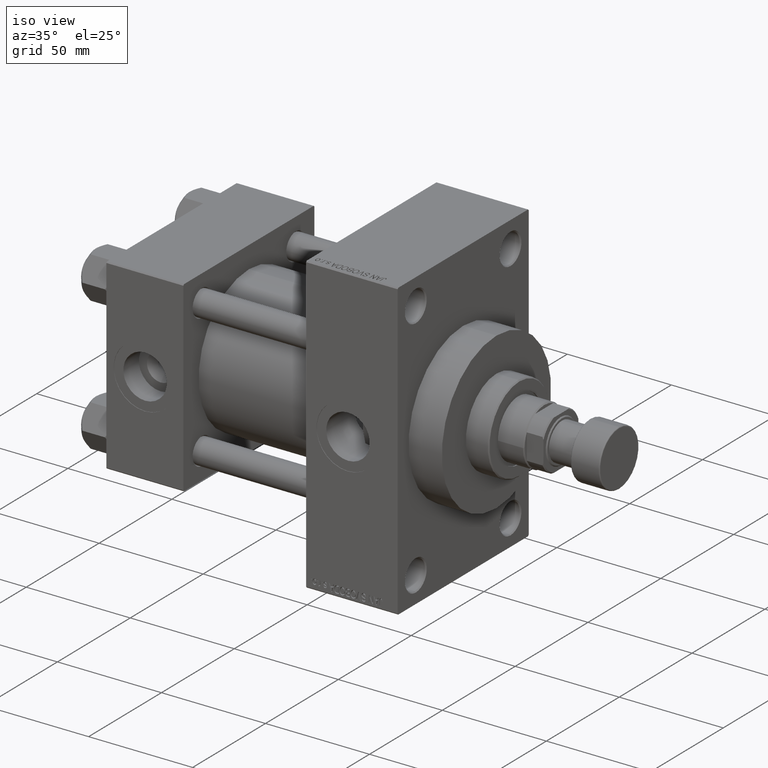
[diagram: clean part render]
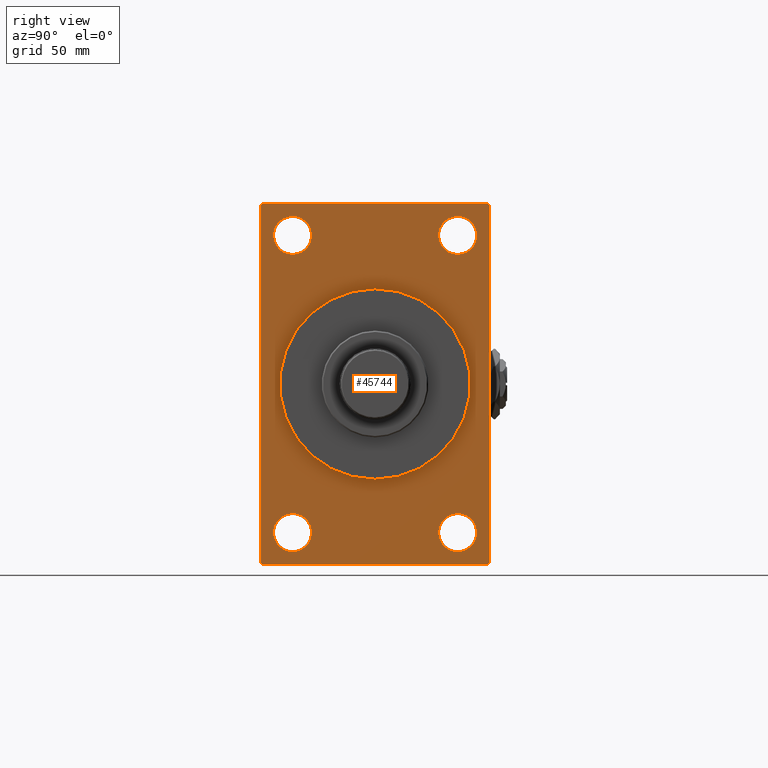
[diagram: tour spotlight — one face highlighted and labeled with its STEP entity id]
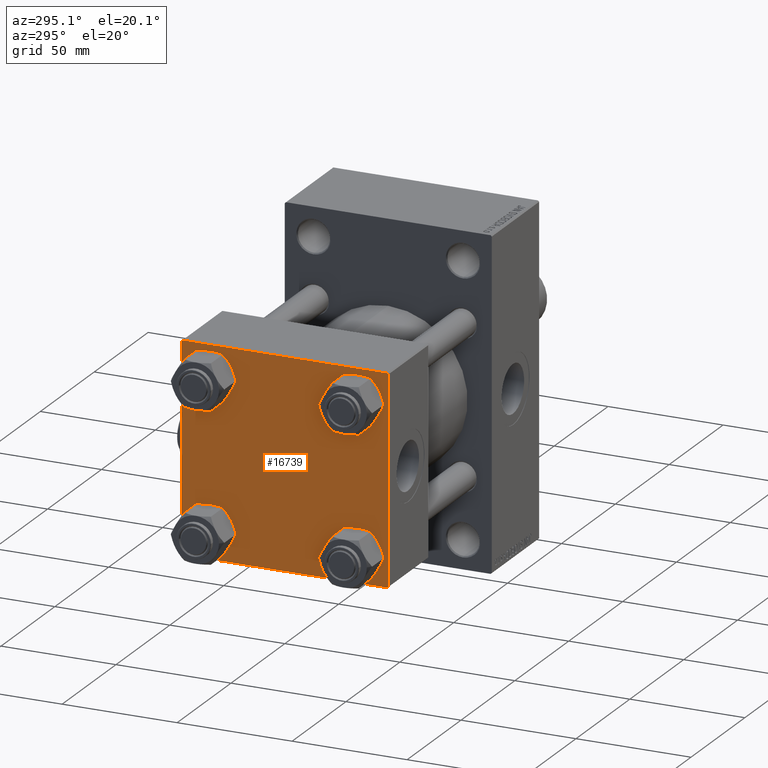
[diagram: tour spotlight — one face highlighted and labeled with its STEP entity id]
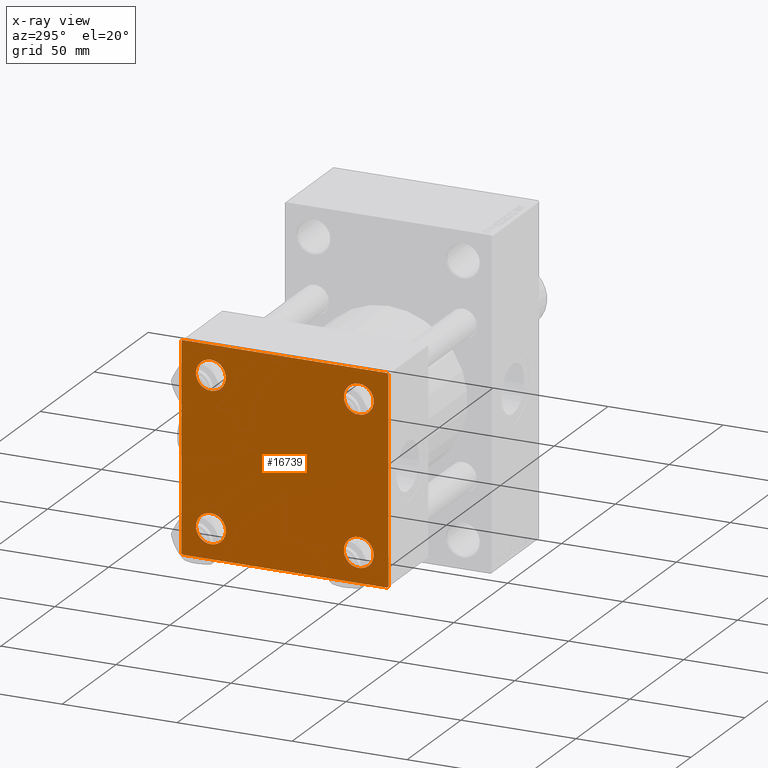
[diagram: x-ray of the same camera — body ghosted, this tour face saturated]
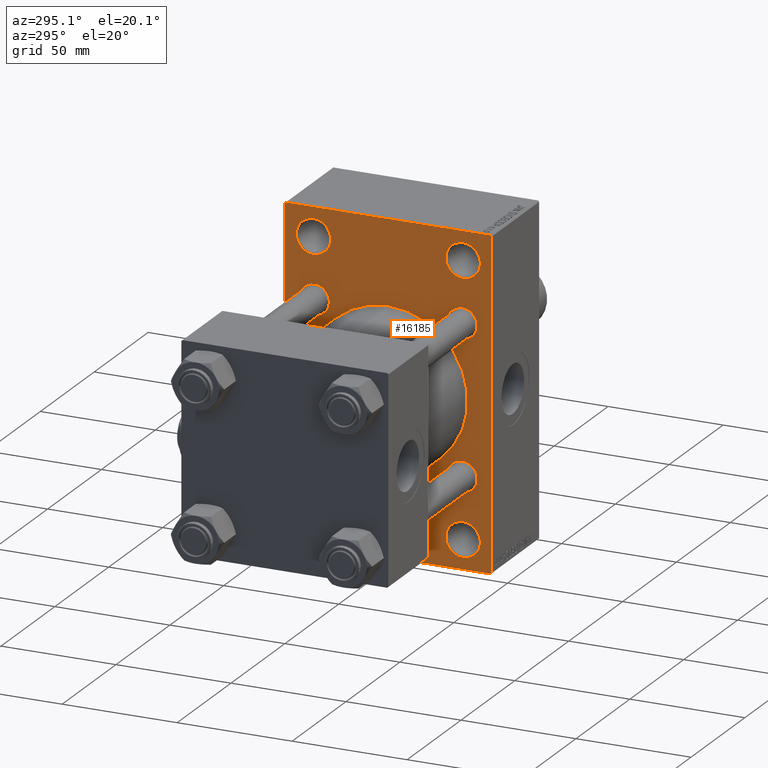
[diagram: tour spotlight — one face highlighted and labeled with its STEP entity id]
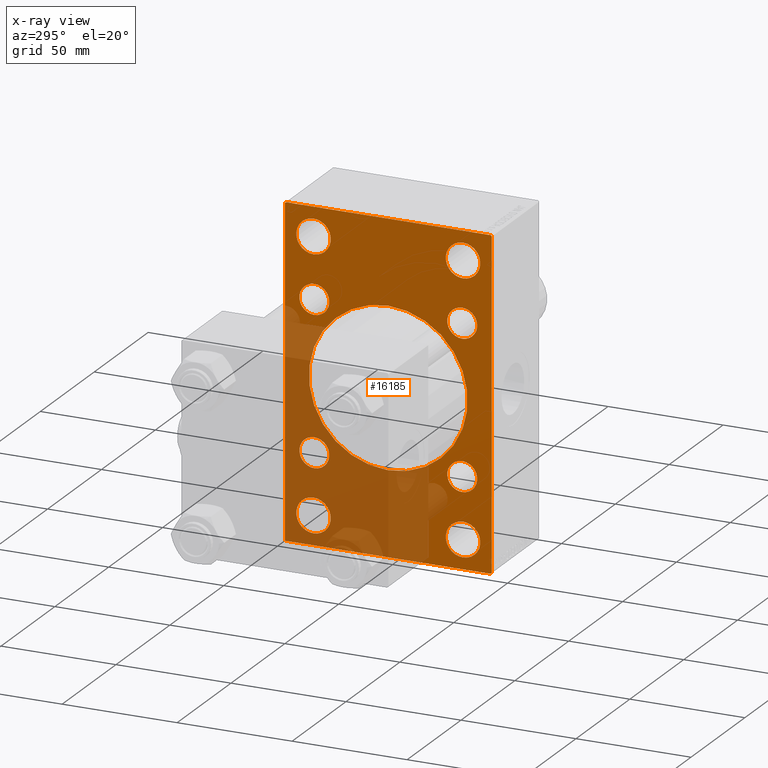
[diagram: x-ray of the same camera — body ghosted, this tour face saturated]
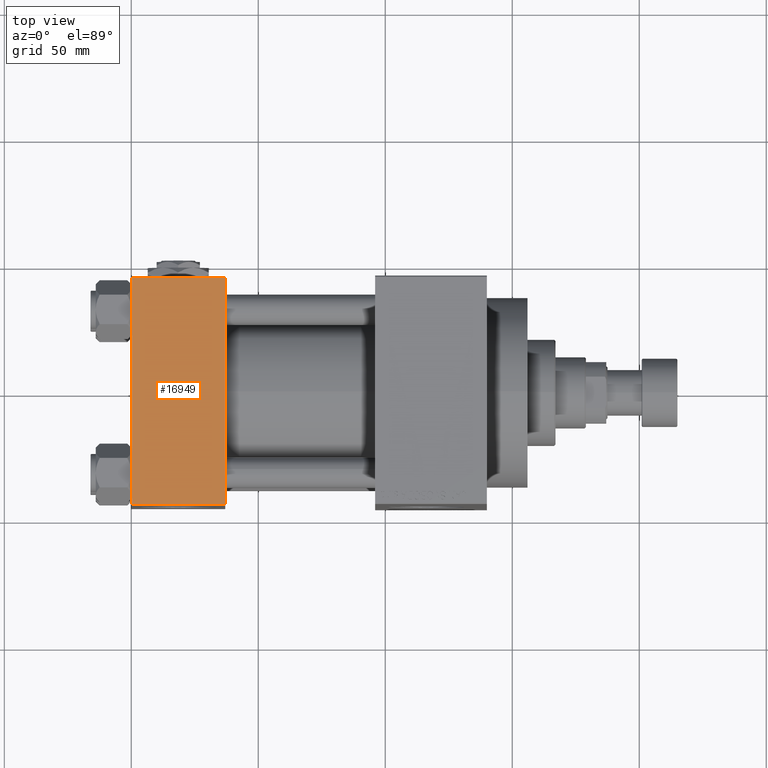
[diagram: tour spotlight — one face highlighted and labeled with its STEP entity id]
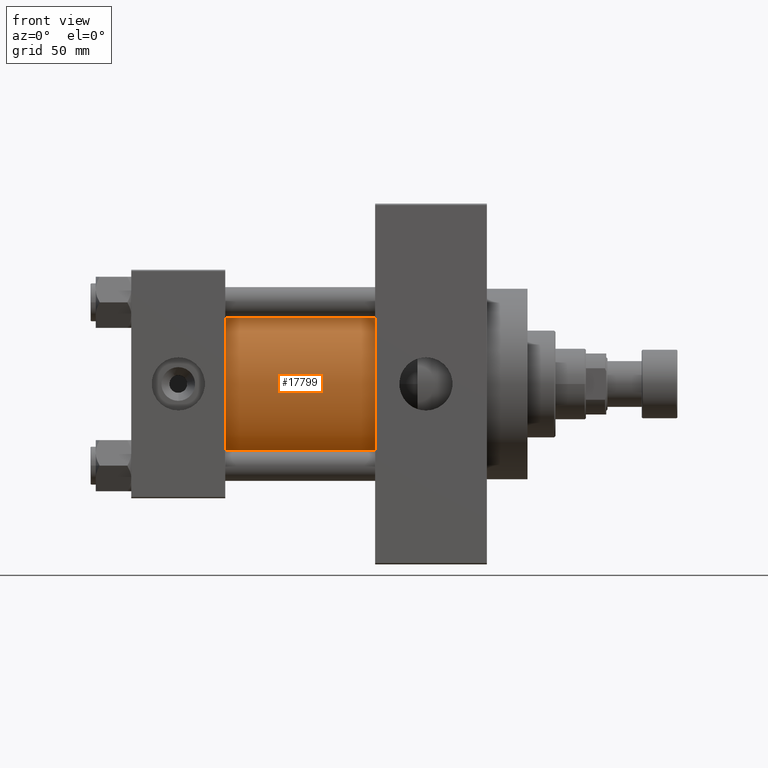
[diagram: tour spotlight — one face highlighted and labeled with its STEP entity id]
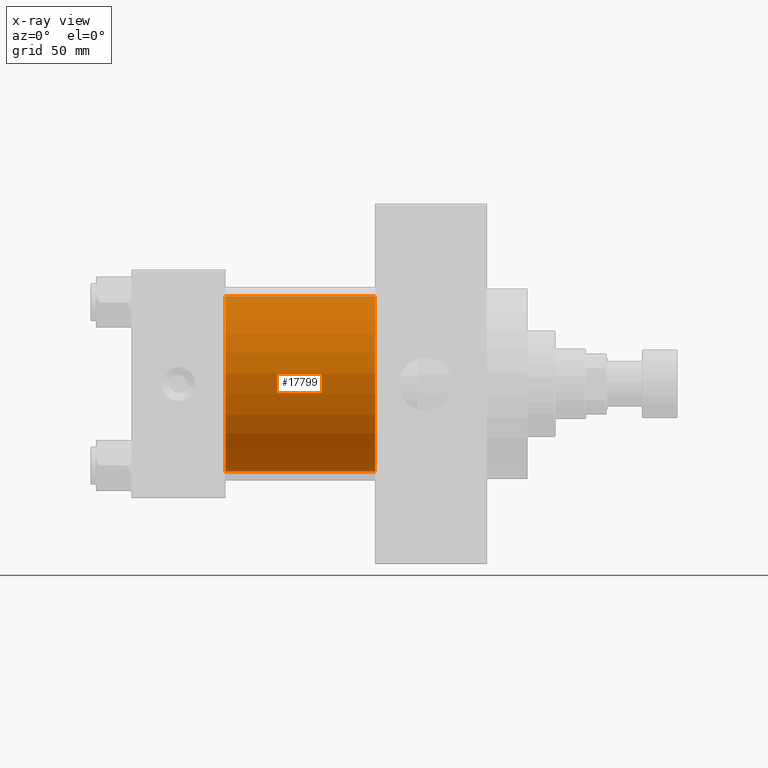
[diagram: x-ray of the same camera — body ghosted, this tour face saturated]
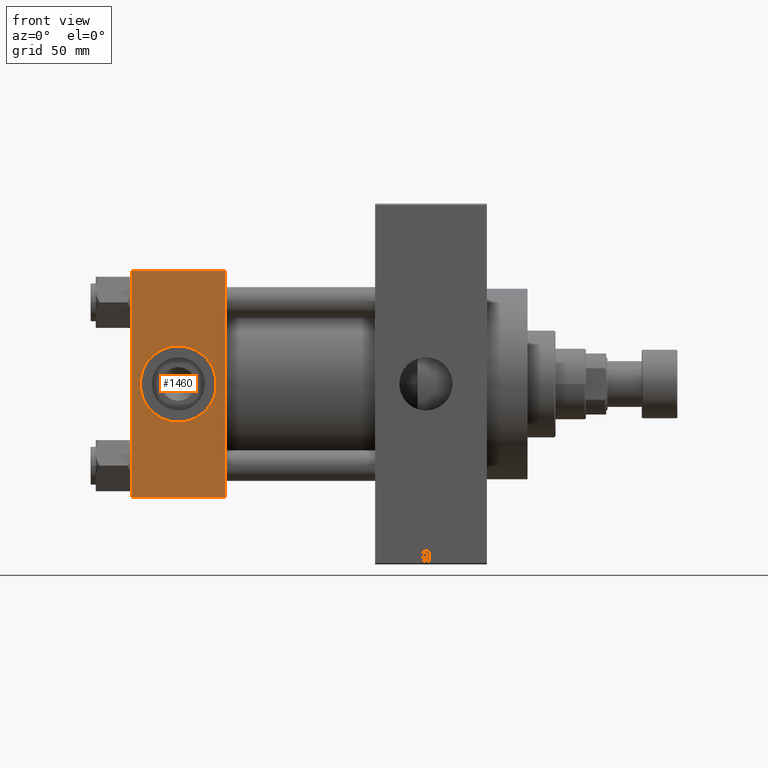
[diagram: tour spotlight — one face highlighted and labeled with its STEP entity id]
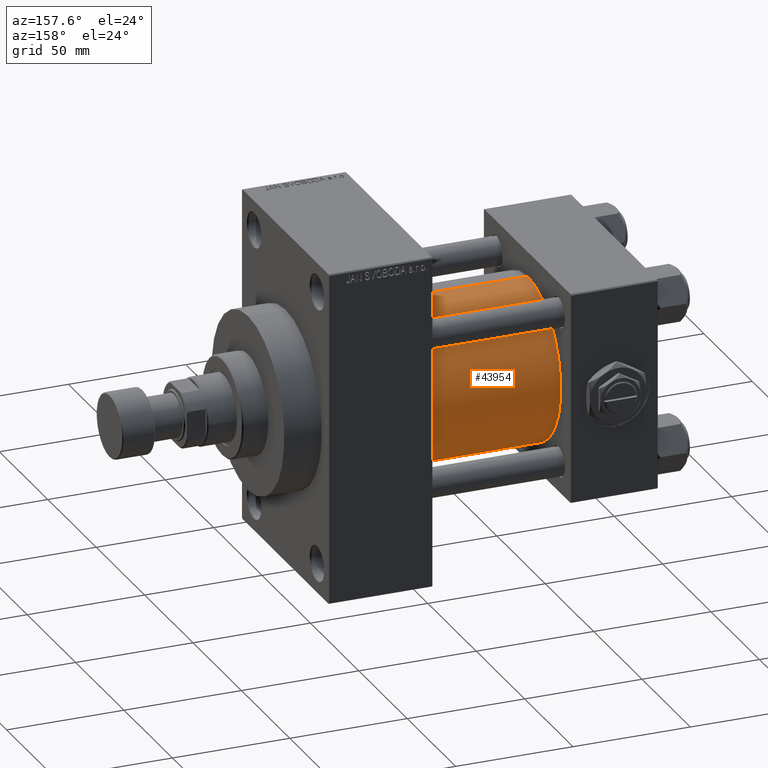
[diagram: tour spotlight — one face highlighted and labeled with its STEP entity id]
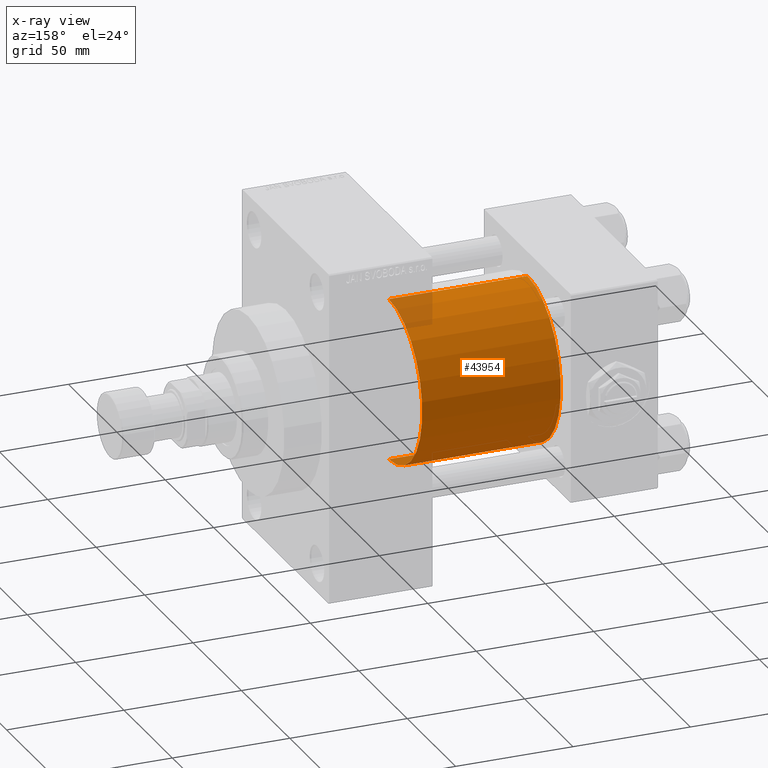
[diagram: x-ray of the same camera — body ghosted, this tour face saturated]
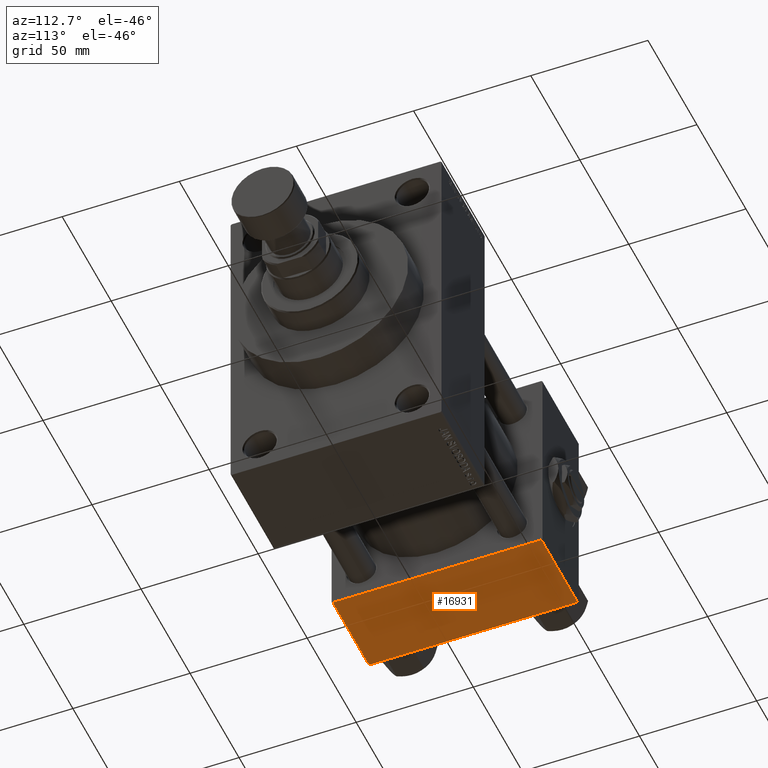
[diagram: tour spotlight — one face highlighted and labeled with its STEP entity id]
A machine part: a face-by-face anatomy tour. The part has 1171 B-rep faces; the first image is the clean iso view, then the 8 largest visible faces are spotlighted one at a time (largest first), each with its STEP entity span.

Face 1 — right view, entity #45744. In plain terms, the highlighted planar face has unit normal (-1, 0, 0).
Definition (entity closure, byte-faithful):
#120 = ORIENTED_EDGE ( 'NONE', *, *, #41703, .T. ) ;
#228 = VECTOR ( 'NONE', #26734, 1000.000000000000000 ) ;
#248 = DIRECTION ( 'NONE',  ( 0.000000000000000000, 0.000000000000000000, 1.000000000000000000 ) ) ;
#551 = ORIENTED_EDGE ( 'NONE', *, *, #11924, .T. ) ;
#705 = DIRECTION ( 'NONE',  ( -1.000000000000000000, 0.000000000000000000, -0.000000000000000000 ) ) ;
#1164 = PLANE ( 'NONE',  #2863 ) ;
#1967 = CARTESIAN_POINT ( 'NONE',  ( 140.0000000000000000, -32.50000000000000000, -58.49999999999999289 ) ) ;
#2120 = ORIENTED_EDGE ( 'NONE', *, *, #6923, .T. ) ;
#2123 = CIRCLE ( 'NONE', #4493, 37.50000000000000711 ) ;
#2285 = DIRECTION ( 'NONE',  ( -1.000000000000000000, 0.000000000000000000, -0.000000000000000000 ) ) ;
#2496 = AXIS2_PLACEMENT_3D ( 'NONE', #46929, #705, #8937 ) ;
#2592 = ORIENTED_EDGE ( 'NONE', *, *, #10836, .F. ) ;
#2709 = VERTEX_POINT ( 'NONE', #3076 ) ;
#2851 = DIRECTION ( 'NONE',  ( 0.000000000000000000, -4.886545002751570165E-17, -1.000000000000000000 ) ) ;
#2863 = AXIS2_PLACEMENT_3D ( 'NONE', #39867, #20623, #8648 ) ;
#3076 = CARTESIAN_POINT ( 'NONE',  ( 140.0000000000000000, -44.99999999999997158, 70.49999999999998579 ) ) ;
#3261 = CARTESIAN_POINT ( 'NONE',  ( 140.0000000000000000, 32.50000000000000711, -58.50000000000000000 ) ) ;
#4016 = CARTESIAN_POINT ( 'NONE',  ( 140.0000000000000000, -32.50000000000000000, -50.99999999999995737 ) ) ;
#4138 = VECTOR ( 'NONE', #9822, 999.9999999999998863 ) ;
#4464 = EDGE_LOOP ( 'NONE', ( #44188, #36639 ) ) ;
#4481 = CARTESIAN_POINT ( 'NONE',  ( 140.0000000000000000, -32.50000000000000000, 65.99999999999994316 ) ) ;
#4493 = AXIS2_PLACEMENT_3D ( 'NONE', #45109, #40355, #48352 ) ;
#5061 = LINE ( 'NONE', #13277, #12745 ) ;
#5152 = CIRCLE ( 'NONE', #15449, 7.500000000000034639 ) ;
#5628 = DIRECTION ( 'NONE',  ( -0.000000000000000000, -0.7071067811865426878, -0.7071067811865524577 ) ) ;
#6531 = DIRECTION ( 'NONE',  ( 0.000000000000000000, -1.000000000000000000, -1.541976423090495387E-16 ) ) ;
#6923 = EDGE_CURVE ( 'NONE', #45723, #37832, #48684, .T. ) ;
#7255 = DIRECTION ( 'NONE',  ( -1.000000000000000000, 0.000000000000000000, -0.000000000000000000 ) ) ;
#7474 = CARTESIAN_POINT ( 'NONE',  ( 140.0000000000000000, -32.50000000000000000, 58.50000000000000711 ) ) ;
#7641 = EDGE_CURVE ( 'NONE', #10715, #27999, #5061, .T. ) ;
#7750 = VERTEX_POINT ( 'NONE', #16776 ) ;
#7806 = ORIENTED_EDGE ( 'NONE', *, *, #26907, .T. ) ;
#7889 = CARTESIAN_POINT ( 'NONE',  ( 140.0000000000000000, 32.50000000000000711, 51.00000000000007105 ) ) ;
#7926 = CARTESIAN_POINT ( 'NONE',  ( 140.0000000000000000, 0.000000000000000000, 0.000000000000000000 ) ) ;
#8648 = DIRECTION ( 'NONE',  ( -0.000000000000000000, 0.000000000000000000, 1.000000000000000000 ) ) ;
#8937 = DIRECTION ( 'NONE',  ( 0.000000000000000000, 0.000000000000000000, 1.000000000000000000 ) ) ;
#9142 = FACE_BOUND ( 'NONE', #44758, .T. ) ;
#9822 = DIRECTION ( 'NONE',  ( -0.000000000000000000, 0.7071067811865574537, 0.7071067811865376918 ) ) ;
#9844 = CARTESIAN_POINT ( 'NONE',  ( 140.0000000000000000, 44.50000000000004263, -70.99999999999998579 ) ) ;
#10070 = VERTEX_POINT ( 'NONE', #25218 ) ;
#10237 = DIRECTION ( 'NONE',  ( 0.000000000000000000, 0.000000000000000000, 1.000000000000000000 ) ) ;
#10406 = CARTESIAN_POINT ( 'NONE',  ( 140.0000000000000000, -44.49999999999994316, -71.00000000000000000 ) ) ;
#10715 = VERTEX_POINT ( 'NONE', #9844 ) ;
#10836 = EDGE_CURVE ( 'NONE', #42996, #10070, #29331, .T. ) ;
#11208 = EDGE_CURVE ( 'NONE', #28837, #19403, #41566, .T. ) ;
#11607 = CIRCLE ( 'NONE', #19566, 7.500000000000041744 ) ;
#11725 = LINE ( 'NONE', #14735, #228 ) ;
#11841 = ORIENTED_EDGE ( 'NONE', *, *, #11208, .T. ) ;
#11924 = EDGE_CURVE ( 'NONE', #2709, #44551, #28310, .T. ) ;
#12447 = ORIENTED_EDGE ( 'NONE', *, *, #30430, .T. ) ;
#12745 = VECTOR ( 'NONE', #28041, 1000.000000000000000 ) ;
#12868 = VECTOR ( 'NONE', #25481, 1000.000000000000114 ) ;
#13277 = CARTESIAN_POINT ( 'NONE',  ( 140.0000000000000000, 45.00000000000001421, -70.99999999999998579 ) ) ;
#13404 = VERTEX_POINT ( 'NONE', #29385 ) ;
#13758 = EDGE_LOOP ( 'NONE', ( #35568, #2120 ) ) ;
#13964 = CIRCLE ( 'NONE', #41892, 7.499999999999936939 ) ;
#14029 = CARTESIAN_POINT ( 'NONE',  ( 140.0000000000000000, 32.50000000000000711, 65.99999999999994316 ) ) ;
#14180 = ORIENTED_EDGE ( 'NONE', *, *, #37606, .T. ) ;
#14542 = LINE ( 'NONE', #21540, #4138 ) ;
#14735 = CARTESIAN_POINT ( 'NONE',  ( 140.0000000000000000, -44.49999999999997158, -71.00000000000000000 ) ) ;
#14825 = EDGE_LOOP ( 'NONE', ( #28208, #120 ) ) ;
#15015 = ORIENTED_EDGE ( 'NONE', *, *, #29464, .T. ) ;
#15449 = AXIS2_PLACEMENT_3D ( 'NONE', #41972, #7255, #22718 ) ;
#16073 = CIRCLE ( 'NONE', #26440, 37.50000000000000711 ) ;
#16776 = CARTESIAN_POINT ( 'NONE',  ( 140.0000000000000000, 44.50000000000002132, 71.00000000000000000 ) ) ;
#17183 = DIRECTION ( 'NONE',  ( -1.000000000000000000, 0.000000000000000000, -0.000000000000000000 ) ) ;
#17335 = CARTESIAN_POINT ( 'NONE',  ( 140.0000000000000000, -44.49999999999995026, 70.99999999999998579 ) ) ;
#17617 = ORIENTED_EDGE ( 'NONE', *, *, #25409, .T. ) ;
#17995 = DIRECTION ( 'NONE',  ( 0.000000000000000000, 0.000000000000000000, 1.000000000000000000 ) ) ;
#18056 = EDGE_CURVE ( 'NONE', #29917, #28258, #44937, .T. ) ;
#18073 = EDGE_CURVE ( 'NONE', #44551, #27999, #11725, .T. ) ;
#18295 = EDGE_LOOP ( 'NONE', ( #551, #24019, #44823, #12447, #2592, #15015, #17617, #7806 ) ) ;
#18305 = VERTEX_POINT ( 'NONE', #26373 ) ;
#18497 = CARTESIAN_POINT ( 'NONE',  ( 140.0000000000000000, 45.00000000000002132, 71.00000000000000000 ) ) ;
#18633 = CARTESIAN_POINT ( 'NONE',  ( 140.0000000000000000, -32.50000000000000000, 58.50000000000000711 ) ) ;
#19403 = VERTEX_POINT ( 'NONE', #14029 ) ;
#19468 = DIRECTION ( 'NONE',  ( -1.000000000000000000, 0.000000000000000000, -0.000000000000000000 ) ) ;
#19566 = AXIS2_PLACEMENT_3D ( 'NONE', #1967, #17183, #47683 ) ;
#19613 = DIRECTION ( 'NONE',  ( 0.000000000000000000, 0.000000000000000000, 1.000000000000000000 ) ) ;
#19885 = FACE_BOUND ( 'NONE', #14825, .T. ) ;
#20048 = CARTESIAN_POINT ( 'NONE',  ( 140.0000000000000000, -44.99999999999997158, 70.99999999999998579 ) ) ;
#20623 = DIRECTION ( 'NONE',  ( -1.000000000000000000, 0.000000000000000000, -0.000000000000000000 ) ) ;
#21540 = CARTESIAN_POINT ( 'NONE',  ( 140.0000000000000000, 45.00000000000001421, -70.50000000000001421 ) ) ;
#21811 = CARTESIAN_POINT ( 'NONE',  ( 140.0000000000000000, 45.00000000000002132, 71.00000000000000000 ) ) ;
#22718 = DIRECTION ( 'NONE',  ( 0.000000000000000000, 0.000000000000000000, 1.000000000000000000 ) ) ;
#24019 = ORIENTED_EDGE ( 'NONE', *, *, #18073, .T. ) ;
#24376 = FACE_BOUND ( 'NONE', #13758, .T. ) ;
#24462 = AXIS2_PLACEMENT_3D ( 'NONE', #36380, #28887, #36134 ) ;
#24840 = LINE ( 'NONE', #32113, #37215 ) ;
#25040 = VERTEX_POINT ( 'NONE', #17335 ) ;
#25218 = CARTESIAN_POINT ( 'NONE',  ( 140.0000000000000000, 45.00000000000001421, -70.50000000000001421 ) ) ;
#25409 = EDGE_CURVE ( 'NONE', #7750, #25040, #37733, .T. ) ;
#25481 = DIRECTION ( 'NONE',  ( 0.000000000000000000, -0.7071067811865474617, 0.7071067811865474617 ) ) ;
#25533 = AXIS2_PLACEMENT_3D ( 'NONE', #3261, #2285, #17995 ) ;
#26373 = CARTESIAN_POINT ( 'NONE',  ( 140.0000000000000000, 0.000000000000000000, 37.50000000000000711 ) ) ;
#26436 = DIRECTION ( 'NONE',  ( 0.000000000000000000, 0.000000000000000000, -1.000000000000000000 ) ) ;
#26440 = AXIS2_PLACEMENT_3D ( 'NONE', #7926, #37435, #26436 ) ;
#26734 = DIRECTION ( 'NONE',  ( 0.000000000000000000, 0.7071067811865573427, -0.7071067811865378028 ) ) ;
#26907 = EDGE_CURVE ( 'NONE', #25040, #2709, #24840, .T. ) ;
#26955 = ORIENTED_EDGE ( 'NONE', *, *, #47757, .T. ) ;
#27221 = VERTEX_POINT ( 'NONE', #39781 ) ;
#27574 = EDGE_LOOP ( 'NONE', ( #11841, #26955 ) ) ;
#27999 = VERTEX_POINT ( 'NONE', #10406 ) ;
#28030 = VECTOR ( 'NONE', #2851, 1000.000000000000000 ) ;
#28041 = DIRECTION ( 'NONE',  ( 0.000000000000000000, -1.000000000000000000, -1.541976423090495633E-16 ) ) ;
#28208 = ORIENTED_EDGE ( 'NONE', *, *, #18056, .T. ) ;
#28258 = VERTEX_POINT ( 'NONE', #4016 ) ;
#28310 = LINE ( 'NONE', #20048, #39223 ) ;
#28837 = VERTEX_POINT ( 'NONE', #7889 ) ;
#28887 = DIRECTION ( 'NONE',  ( -1.000000000000000000, 0.000000000000000000, -0.000000000000000000 ) ) ;
#29331 = LINE ( 'NONE', #21811, #28030 ) ;
#29385 = CARTESIAN_POINT ( 'NONE',  ( 140.0000000000000000, 4.592425496802575156E-15, -37.50000000000000711 ) ) ;
#29464 = EDGE_CURVE ( 'NONE', #42996, #7750, #48715, .T. ) ;
#29726 = CARTESIAN_POINT ( 'NONE',  ( 140.0000000000000000, 44.50000000000002132, 71.00000000000000000 ) ) ;
#29917 = VERTEX_POINT ( 'NONE', #47013 ) ;
#30430 = EDGE_CURVE ( 'NONE', #10715, #10070, #14542, .T. ) ;
#32113 = CARTESIAN_POINT ( 'NONE',  ( 140.0000000000000000, -44.99999999999997158, 70.49999999999998579 ) ) ;
#32134 = EDGE_CURVE ( 'NONE', #18305, #13404, #16073, .T. ) ;
#32139 = FACE_OUTER_BOUND ( 'NONE', #18295, .T. ) ;
#32511 = CARTESIAN_POINT ( 'NONE',  ( 140.0000000000000000, 45.00000000000002132, 70.50000000000000000 ) ) ;
#35301 = DIRECTION ( 'NONE',  ( 0.000000000000000000, 0.000000000000000000, -1.000000000000000000 ) ) ;
#35568 = ORIENTED_EDGE ( 'NONE', *, *, #38809, .T. ) ;
#36134 = DIRECTION ( 'NONE',  ( 0.000000000000000000, 0.000000000000000000, 1.000000000000000000 ) ) ;
#36380 = CARTESIAN_POINT ( 'NONE',  ( 140.0000000000000000, 32.50000000000000711, 58.50000000000000711 ) ) ;
#36639 = ORIENTED_EDGE ( 'NONE', *, *, #47066, .F. ) ;
#37215 = VECTOR ( 'NONE', #5628, 1000.000000000000000 ) ;
#37435 = DIRECTION ( 'NONE',  ( 1.000000000000000000, 0.000000000000000000, 0.000000000000000000 ) ) ;
#37606 = EDGE_CURVE ( 'NONE', #27221, #46656, #40983, .T. ) ;
#37733 = LINE ( 'NONE', #18497, #41178 ) ;
#37832 = VERTEX_POINT ( 'NONE', #44839 ) ;
#38622 = CARTESIAN_POINT ( 'NONE',  ( 140.0000000000000000, 32.50000000000000711, -50.99999999999996447 ) ) ;
#38809 = EDGE_CURVE ( 'NONE', #37832, #45723, #5152, .T. ) ;
#39223 = VECTOR ( 'NONE', #35301, 1000.000000000000000 ) ;
#39371 = FACE_BOUND ( 'NONE', #27574, .T. ) ;
#39781 = CARTESIAN_POINT ( 'NONE',  ( 140.0000000000000000, -32.50000000000000000, 51.00000000000007105 ) ) ;
#39867 = CARTESIAN_POINT ( 'NONE',  ( 140.0000000000000000, 0.000000000000000000, 0.000000000000000000 ) ) ;
#40355 = DIRECTION ( 'NONE',  ( 1.000000000000000000, 0.000000000000000000, 0.000000000000000000 ) ) ;
#40983 = CIRCLE ( 'NONE', #41792, 7.499999999999936939 ) ;
#41178 = VECTOR ( 'NONE', #6531, 1000.000000000000000 ) ;
#41551 = EDGE_CURVE ( 'NONE', #46656, #27221, #13964, .T. ) ;
#41566 = CIRCLE ( 'NONE', #2496, 7.499999999999936939 ) ;
#41703 = EDGE_CURVE ( 'NONE', #28258, #29917, #11607, .T. ) ;
#41792 = AXIS2_PLACEMENT_3D ( 'NONE', #18633, #45390, #19613 ) ;
#41892 = AXIS2_PLACEMENT_3D ( 'NONE', #7474, #44488, #10237 ) ;
#41972 = CARTESIAN_POINT ( 'NONE',  ( 140.0000000000000000, 32.50000000000000711, -58.50000000000000000 ) ) ;
#42118 = ORIENTED_EDGE ( 'NONE', *, *, #41551, .T. ) ;
#42844 = CIRCLE ( 'NONE', #24462, 7.499999999999936939 ) ;
#42996 = VERTEX_POINT ( 'NONE', #32511 ) ;
#43436 = CARTESIAN_POINT ( 'NONE',  ( 140.0000000000000000, -44.99999999999997158, -70.50000000000000000 ) ) ;
#43640 = FACE_BOUND ( 'NONE', #4464, .T. ) ;
#44188 = ORIENTED_EDGE ( 'NONE', *, *, #32134, .F. ) ;
#44488 = DIRECTION ( 'NONE',  ( -1.000000000000000000, 0.000000000000000000, -0.000000000000000000 ) ) ;
#44551 = VERTEX_POINT ( 'NONE', #43436 ) ;
#44758 = EDGE_LOOP ( 'NONE', ( #14180, #42118 ) ) ;
#44823 = ORIENTED_EDGE ( 'NONE', *, *, #7641, .F. ) ;
#44839 = CARTESIAN_POINT ( 'NONE',  ( 140.0000000000000000, 32.50000000000000711, -66.00000000000002842 ) ) ;
#44937 = CIRCLE ( 'NONE', #48918, 7.500000000000041744 ) ;
#45109 = CARTESIAN_POINT ( 'NONE',  ( 140.0000000000000000, 0.000000000000000000, 0.000000000000000000 ) ) ;
#45390 = DIRECTION ( 'NONE',  ( -1.000000000000000000, 0.000000000000000000, -0.000000000000000000 ) ) ;
#45723 = VERTEX_POINT ( 'NONE', #38622 ) ;
#45725 = CARTESIAN_POINT ( 'NONE',  ( 140.0000000000000000, -32.50000000000000000, -58.49999999999999289 ) ) ;
#45744 = ADVANCED_FACE ( 'NONE', ( #9142, #19885, #24376, #39371, #43640, #32139 ), #1164, .F. ) ;
#46656 = VERTEX_POINT ( 'NONE', #4481 ) ;
#46929 = CARTESIAN_POINT ( 'NONE',  ( 140.0000000000000000, 32.50000000000000711, 58.50000000000000711 ) ) ;
#47013 = CARTESIAN_POINT ( 'NONE',  ( 140.0000000000000000, -32.50000000000000000, -66.00000000000001421 ) ) ;
#47066 = EDGE_CURVE ( 'NONE', #13404, #18305, #2123, .T. ) ;
#47683 = DIRECTION ( 'NONE',  ( 0.000000000000000000, 0.000000000000000000, 1.000000000000000000 ) ) ;
#47757 = EDGE_CURVE ( 'NONE', #19403, #28837, #42844, .T. ) ;
#48352 = DIRECTION ( 'NONE',  ( 0.000000000000000000, 0.000000000000000000, -1.000000000000000000 ) ) ;
#48684 = CIRCLE ( 'NONE', #25533, 7.500000000000034639 ) ;
#48715 = LINE ( 'NONE', #29726, #12868 ) ;
#48918 = AXIS2_PLACEMENT_3D ( 'NONE', #45725, #19468, #248 ) ;

Face 2 — auxiliary view, entity #16739. An x-ray twin of the same camera follows (body ghosted, this face saturated) — the face is partly hidden behind the body. In plain terms, the highlighted planar face has unit normal (-1, 0, 0).
Definition (entity closure, byte-faithful):
#538 = EDGE_LOOP ( 'NONE', ( #47938, #13054 ) ) ;
#895 = DIRECTION ( 'NONE',  ( 1.000000000000000000, -0.000000000000000000, 0.000000000000000000 ) ) ;
#952 = CIRCLE ( 'NONE', #32052, 6.499999999999977796 ) ;
#1495 = CARTESIAN_POINT ( 'NONE',  ( 0.000000000000000000, -32.14999999999997726, -32.15000000000001279 ) ) ;
#1565 = CARTESIAN_POINT ( 'NONE',  ( 0.000000000000000000, -32.14999999999997726, 25.64999999999999147 ) ) ;
#2676 = CARTESIAN_POINT ( 'NONE',  ( 0.000000000000000000, -45.00000000000000711, 44.49999999999997158 ) ) ;
#3580 = DIRECTION ( 'NONE',  ( 1.000000000000000000, -0.000000000000000000, 0.000000000000000000 ) ) ;
#3805 = EDGE_CURVE ( 'NONE', #4251, #46585, #19927, .T. ) ;
#4075 = DIRECTION ( 'NONE',  ( 0.000000000000000000, -1.000000000000000000, -1.541976423090495633E-16 ) ) ;
#4169 = VECTOR ( 'NONE', #42724, 1000.000000000000114 ) ;
#4251 = VERTEX_POINT ( 'NONE', #22965 ) ;
#4494 = DIRECTION ( 'NONE',  ( 1.000000000000000000, -0.000000000000000000, 0.000000000000000000 ) ) ;
#4613 = ORIENTED_EDGE ( 'NONE', *, *, #10912, .T. ) ;
#4690 = CARTESIAN_POINT ( 'NONE',  ( 0.000000000000000000, 44.99999999999998579, 45.00000000000001421 ) ) ;
#4790 = DIRECTION ( 'NONE',  ( 1.000000000000000000, -0.000000000000000000, 0.000000000000000000 ) ) ;
#4834 = CARTESIAN_POINT ( 'NONE',  ( 0.000000000000000000, 44.99999999999998579, -44.99999999999998579 ) ) ;
#4864 = EDGE_CURVE ( 'NONE', #34616, #44184, #8429, .T. ) ;
#5030 = DIRECTION ( 'NONE',  ( -0.000000000000000000, -0.7071067811865474617, -0.7071067811865474617 ) ) ;
#5034 = DIRECTION ( 'NONE',  ( 0.000000000000000000, 0.000000000000000000, 1.000000000000000000 ) ) ;
#6085 = AXIS2_PLACEMENT_3D ( 'NONE', #22303, #3580, #26805 ) ;
#6284 = CARTESIAN_POINT ( 'NONE',  ( 0.000000000000000000, 44.99999999999998579, -44.49999999999995737 ) ) ;
#6482 = EDGE_CURVE ( 'NONE', #21910, #32002, #17080, .T. ) ;
#6615 = CARTESIAN_POINT ( 'NONE',  ( 0.000000000000000000, -44.49999999999995737, 45.00000000000000000 ) ) ;
#6681 = AXIS2_PLACEMENT_3D ( 'NONE', #19867, #895, #33095 ) ;
#6756 = CARTESIAN_POINT ( 'NONE',  ( 0.000000000000000000, 32.14999999999999147, -25.65000000000002700 ) ) ;
#7055 = AXIS2_PLACEMENT_3D ( 'NONE', #25379, #29378, #47888 ) ;
#7746 = VERTEX_POINT ( 'NONE', #1565 ) ;
#8185 = LINE ( 'NONE', #31179, #37862 ) ;
#8233 = CARTESIAN_POINT ( 'NONE',  ( 0.000000000000000000, -44.74999999999998579, -44.74999999999998579 ) ) ;
#8429 = LINE ( 'NONE', #4690, #27018 ) ;
#8451 = CARTESIAN_POINT ( 'NONE',  ( 0.000000000000000000, 32.14999999999999147, 38.64999999999999147 ) ) ;
#8841 = PLANE ( 'NONE',  #10573 ) ;
#8927 = CARTESIAN_POINT ( 'NONE',  ( 0.000000000000000000, 44.49999999999998579, 45.00000000000001421 ) ) ;
#10573 = AXIS2_PLACEMENT_3D ( 'NONE', #21055, #24070, #39316 ) ;
#10912 = EDGE_CURVE ( 'NONE', #34616, #27006, #38282, .T. ) ;
#11767 = DIRECTION ( 'NONE',  ( 1.000000000000000000, -0.000000000000000000, 0.000000000000000000 ) ) ;
#12092 = LINE ( 'NONE', #23587, #33245 ) ;
#12324 = DIRECTION ( 'NONE',  ( 1.000000000000000000, -0.000000000000000000, 0.000000000000000000 ) ) ;
#12516 = EDGE_CURVE ( 'NONE', #20242, #7746, #36086, .T. ) ;
#12714 = VECTOR ( 'NONE', #20085, 1000.000000000000000 ) ;
#12828 = CARTESIAN_POINT ( 'NONE',  ( 0.000000000000000000, -45.00000000000000711, 45.00000000000000000 ) ) ;
#13032 = CARTESIAN_POINT ( 'NONE',  ( 0.000000000000000000, -32.14999999999997726, -25.65000000000003411 ) ) ;
#13054 = ORIENTED_EDGE ( 'NONE', *, *, #3805, .T. ) ;
#13776 = DIRECTION ( 'NONE',  ( 0.000000000000000000, 0.000000000000000000, 1.000000000000000000 ) ) ;
#14028 = AXIS2_PLACEMENT_3D ( 'NONE', #23762, #11767, #30772 ) ;
#14768 = ORIENTED_EDGE ( 'NONE', *, *, #25182, .T. ) ;
#14967 = ORIENTED_EDGE ( 'NONE', *, *, #6482, .F. ) ;
#14976 = LINE ( 'NONE', #8233, #4169 ) ;
#15754 = CARTESIAN_POINT ( 'NONE',  ( 0.000000000000000000, 32.14999999999999147, 32.15000000000000568 ) ) ;
#15965 = DIRECTION ( 'NONE',  ( 0.000000000000000000, 0.000000000000000000, 1.000000000000000000 ) ) ;
#16252 = CARTESIAN_POINT ( 'NONE',  ( 0.000000000000000000, 44.74999999999998579, -44.74999999999998579 ) ) ;
#16702 = ORIENTED_EDGE ( 'NONE', *, *, #37742, .T. ) ;
#16739 = ADVANCED_FACE ( 'NONE', ( #43082, #27841, #17073, #31836, #36065 ), #8841, .T. ) ;
#17073 = FACE_BOUND ( 'NONE', #538, .T. ) ;
#17080 = LINE ( 'NONE', #12828, #12714 ) ;
#17296 = DIRECTION ( 'NONE',  ( 1.000000000000000000, -0.000000000000000000, 0.000000000000000000 ) ) ;
#17765 = CARTESIAN_POINT ( 'NONE',  ( 0.000000000000000000, 44.49999999999998579, -44.99999999999998579 ) ) ;
#18955 = VERTEX_POINT ( 'NONE', #8451 ) ;
#19867 = CARTESIAN_POINT ( 'NONE',  ( 0.000000000000000000, 32.14999999999999147, 32.15000000000000568 ) ) ;
#19912 = DIRECTION ( 'NONE',  ( 0.000000000000000000, -1.000000000000000000, -1.541976423090495387E-16 ) ) ;
#19927 = CIRCLE ( 'NONE', #7055, 6.499999999999977796 ) ;
#19932 = EDGE_LOOP ( 'NONE', ( #34623, #27143, #22468, #43832, #14967, #29489, #24746, #4613 ) ) ;
#20085 = DIRECTION ( 'NONE',  ( 0.000000000000000000, 7.709882115452476934E-17, -1.000000000000000000 ) ) ;
#20242 = VERTEX_POINT ( 'NONE', #34129 ) ;
#21055 = CARTESIAN_POINT ( 'NONE',  ( 0.000000000000000000, 0.000000000000000000, 0.000000000000000000 ) ) ;
#21538 = EDGE_LOOP ( 'NONE', ( #35888, #48677 ) ) ;
#21910 = VERTEX_POINT ( 'NONE', #2676 ) ;
#21951 = VECTOR ( 'NONE', #5030, 1000.000000000000114 ) ;
#22303 = CARTESIAN_POINT ( 'NONE',  ( 0.000000000000000000, -32.14999999999997726, -32.15000000000001279 ) ) ;
#22326 = EDGE_CURVE ( 'NONE', #35083, #40840, #31309, .T. ) ;
#22468 = ORIENTED_EDGE ( 'NONE', *, *, #22326, .T. ) ;
#22965 = CARTESIAN_POINT ( 'NONE',  ( 0.000000000000000000, 32.14999999999999147, -38.64999999999998437 ) ) ;
#23236 = AXIS2_PLACEMENT_3D ( 'NONE', #43571, #12324, #42825 ) ;
#23300 = AXIS2_PLACEMENT_3D ( 'NONE', #28564, #17296, #13776 ) ;
#23471 = EDGE_LOOP ( 'NONE', ( #16702, #30263 ) ) ;
#23587 = CARTESIAN_POINT ( 'NONE',  ( -0.000000000000000000, -44.75000000000029843, 44.74999999999967315 ) ) ;
#23762 = CARTESIAN_POINT ( 'NONE',  ( 0.000000000000000000, 32.14999999999999147, -32.15000000000000568 ) ) ;
#24070 = DIRECTION ( 'NONE',  ( -1.000000000000000000, 0.000000000000000000, -0.000000000000000000 ) ) ;
#24746 = ORIENTED_EDGE ( 'NONE', *, *, #4864, .F. ) ;
#25182 = EDGE_CURVE ( 'NONE', #49283, #31902, #47579, .T. ) ;
#25379 = CARTESIAN_POINT ( 'NONE',  ( 0.000000000000000000, 32.14999999999999147, -32.15000000000000568 ) ) ;
#25923 = VECTOR ( 'NONE', #4075, 1000.000000000000000 ) ;
#26805 = DIRECTION ( 'NONE',  ( 0.000000000000000000, 0.000000000000000000, 1.000000000000000000 ) ) ;
#27006 = VERTEX_POINT ( 'NONE', #45085 ) ;
#27018 = VECTOR ( 'NONE', #19912, 1000.000000000000000 ) ;
#27143 = ORIENTED_EDGE ( 'NONE', *, *, #45536, .T. ) ;
#27236 = VECTOR ( 'NONE', #35729, 1000.000000000000114 ) ;
#27841 = FACE_BOUND ( 'NONE', #36432, .T. ) ;
#28564 = CARTESIAN_POINT ( 'NONE',  ( 0.000000000000000000, -32.14999999999997726, 32.15000000000001279 ) ) ;
#28865 = CIRCLE ( 'NONE', #23236, 6.500000000000019540 ) ;
#29378 = DIRECTION ( 'NONE',  ( 1.000000000000000000, -0.000000000000000000, 0.000000000000000000 ) ) ;
#29489 = ORIENTED_EDGE ( 'NONE', *, *, #48143, .T. ) ;
#29886 = EDGE_CURVE ( 'NONE', #46459, #18955, #952, .T. ) ;
#30263 = ORIENTED_EDGE ( 'NONE', *, *, #29886, .T. ) ;
#30772 = DIRECTION ( 'NONE',  ( 0.000000000000000000, 0.000000000000000000, 1.000000000000000000 ) ) ;
#30878 = CIRCLE ( 'NONE', #48468, 6.499999999999977796 ) ;
#31179 = CARTESIAN_POINT ( 'NONE',  ( 0.000000000000000000, 44.99999999999998579, 45.00000000000001421 ) ) ;
#31309 = LINE ( 'NONE', #4834, #25923 ) ;
#31836 = FACE_BOUND ( 'NONE', #23471, .T. ) ;
#31902 = VERTEX_POINT ( 'NONE', #39452 ) ;
#32002 = VERTEX_POINT ( 'NONE', #33205 ) ;
#32052 = AXIS2_PLACEMENT_3D ( 'NONE', #15754, #4790, #5034 ) ;
#32497 = EDGE_CURVE ( 'NONE', #7746, #20242, #28865, .T. ) ;
#33095 = DIRECTION ( 'NONE',  ( 0.000000000000000000, 0.000000000000000000, 1.000000000000000000 ) ) ;
#33205 = CARTESIAN_POINT ( 'NONE',  ( 0.000000000000000000, -45.00000000000000000, -44.49999999999995737 ) ) ;
#33245 = VECTOR ( 'NONE', #38834, 1000.000000000000114 ) ;
#34129 = CARTESIAN_POINT ( 'NONE',  ( 0.000000000000000000, -32.14999999999997726, 38.65000000000003411 ) ) ;
#34243 = EDGE_CURVE ( 'NONE', #40840, #32002, #14976, .T. ) ;
#34616 = VERTEX_POINT ( 'NONE', #8927 ) ;
#34623 = ORIENTED_EDGE ( 'NONE', *, *, #40030, .T. ) ;
#35083 = VERTEX_POINT ( 'NONE', #17765 ) ;
#35248 = ORIENTED_EDGE ( 'NONE', *, *, #48669, .T. ) ;
#35729 = DIRECTION ( 'NONE',  ( 0.000000000000000000, 0.7071067811865474617, -0.7071067811865474617 ) ) ;
#35888 = ORIENTED_EDGE ( 'NONE', *, *, #12516, .T. ) ;
#36013 = VERTEX_POINT ( 'NONE', #6284 ) ;
#36065 = FACE_OUTER_BOUND ( 'NONE', #19932, .T. ) ;
#36086 = CIRCLE ( 'NONE', #23300, 6.500000000000019540 ) ;
#36432 = EDGE_LOOP ( 'NONE', ( #14768, #35248 ) ) ;
#37742 = EDGE_CURVE ( 'NONE', #18955, #46459, #44992, .T. ) ;
#37862 = VECTOR ( 'NONE', #46430, 1000.000000000000000 ) ;
#38282 = LINE ( 'NONE', #49300, #27236 ) ;
#38834 = DIRECTION ( 'NONE',  ( -0.000000000000000000, 0.7071067811865425767, 0.7071067811865524577 ) ) ;
#39316 = DIRECTION ( 'NONE',  ( -0.000000000000000000, 0.000000000000000000, 1.000000000000000000 ) ) ;
#39452 = CARTESIAN_POINT ( 'NONE',  ( 0.000000000000000000, -32.14999999999997726, -38.64999999999999147 ) ) ;
#40030 = EDGE_CURVE ( 'NONE', #27006, #36013, #8185, .T. ) ;
#40840 = VERTEX_POINT ( 'NONE', #43926 ) ;
#41963 = CIRCLE ( 'NONE', #14028, 6.499999999999977796 ) ;
#42510 = CARTESIAN_POINT ( 'NONE',  ( 0.000000000000000000, 32.14999999999999147, 25.65000000000002700 ) ) ;
#42724 = DIRECTION ( 'NONE',  ( 0.000000000000000000, -0.7071067811865474617, 0.7071067811865474617 ) ) ;
#42825 = DIRECTION ( 'NONE',  ( 0.000000000000000000, 0.000000000000000000, 1.000000000000000000 ) ) ;
#43082 = FACE_BOUND ( 'NONE', #21538, .T. ) ;
#43571 = CARTESIAN_POINT ( 'NONE',  ( 0.000000000000000000, -32.14999999999997726, 32.15000000000001279 ) ) ;
#43832 = ORIENTED_EDGE ( 'NONE', *, *, #34243, .T. ) ;
#43926 = CARTESIAN_POINT ( 'NONE',  ( 0.000000000000000000, -44.49999999999995737, -45.00000000000000000 ) ) ;
#44184 = VERTEX_POINT ( 'NONE', #6615 ) ;
#44992 = CIRCLE ( 'NONE', #6681, 6.499999999999977796 ) ;
#45085 = CARTESIAN_POINT ( 'NONE',  ( 0.000000000000000000, 44.99999999999998579, 44.50000000000001421 ) ) ;
#45536 = EDGE_CURVE ( 'NONE', #36013, #35083, #46763, .T. ) ;
#46359 = EDGE_CURVE ( 'NONE', #46585, #4251, #41963, .T. ) ;
#46430 = DIRECTION ( 'NONE',  ( 0.000000000000000000, 0.000000000000000000, -1.000000000000000000 ) ) ;
#46459 = VERTEX_POINT ( 'NONE', #42510 ) ;
#46585 = VERTEX_POINT ( 'NONE', #6756 ) ;
#46763 = LINE ( 'NONE', #16252, #21951 ) ;
#47579 = CIRCLE ( 'NONE', #6085, 6.499999999999977796 ) ;
#47888 = DIRECTION ( 'NONE',  ( 0.000000000000000000, 0.000000000000000000, 1.000000000000000000 ) ) ;
#47938 = ORIENTED_EDGE ( 'NONE', *, *, #46359, .T. ) ;
#48143 = EDGE_CURVE ( 'NONE', #21910, #44184, #12092, .T. ) ;
#48468 = AXIS2_PLACEMENT_3D ( 'NONE', #1495, #4494, #15965 ) ;
#48669 = EDGE_CURVE ( 'NONE', #31902, #49283, #30878, .T. ) ;
#48677 = ORIENTED_EDGE ( 'NONE', *, *, #32497, .T. ) ;
#49283 = VERTEX_POINT ( 'NONE', #13032 ) ;
#49300 = CARTESIAN_POINT ( 'NONE',  ( 0.000000000000000000, 44.74999999999999289, 44.74999999999999289 ) ) ;

Face 3 — auxiliary view, entity #16185. An x-ray twin of the same camera follows (body ghosted, this face saturated) — the face is partly hidden behind the body. In plain terms, the highlighted planar face has unit normal (-1, 0, 0).
Definition (entity closure, byte-faithful):
#159 = EDGE_CURVE ( 'NONE', #44255, #17472, #15555, .T. ) ;
#264 = CARTESIAN_POINT ( 'NONE',  ( 96.00000000000000000, -32.14999999999997726, 38.65000000000002700 ) ) ;
#302 = ORIENTED_EDGE ( 'NONE', *, *, #37336, .T. ) ;
#310 = CARTESIAN_POINT ( 'NONE',  ( 96.00000000000000000, -32.50000000000000000, -51.00000000000000711 ) ) ;
#391 = CARTESIAN_POINT ( 'NONE',  ( 96.00000000000000000, -32.50000000000000000, -58.49999999999999289 ) ) ;
#501 = VERTEX_POINT ( 'NONE', #39271 ) ;
#573 = CARTESIAN_POINT ( 'NONE',  ( 96.00000000000000000, -32.14999999999997726, 32.15000000000001279 ) ) ;
#765 = CARTESIAN_POINT ( 'NONE',  ( 96.00000000000000000, -2.602085213965210642E-15, 34.50000000000000000 ) ) ;
#1087 = CIRCLE ( 'NONE', #18611, 6.500000000000005329 ) ;
#1181 = DIRECTION ( 'NONE',  ( 0.000000000000000000, 0.000000000000000000, 1.000000000000000000 ) ) ;
#1306 = EDGE_LOOP ( 'NONE', ( #10267, #2498 ) ) ;
#1723 = FACE_BOUND ( 'NONE', #1306, .T. ) ;
#1772 = VECTOR ( 'NONE', #15092, 1000.000000000000000 ) ;
#1869 = DIRECTION ( 'NONE',  ( 1.000000000000000000, -0.000000000000000000, 0.000000000000000000 ) ) ;
#1953 = DIRECTION ( 'NONE',  ( 1.000000000000000000, -0.000000000000000000, 0.000000000000000000 ) ) ;
#1971 = FACE_BOUND ( 'NONE', #19514, .T. ) ;
#2203 = DIRECTION ( 'NONE',  ( 0.000000000000000000, 0.000000000000000000, 1.000000000000000000 ) ) ;
#2498 = ORIENTED_EDGE ( 'NONE', *, *, #6503, .T. ) ;
#2889 = CARTESIAN_POINT ( 'NONE',  ( 96.00000000000000000, 32.50000000000000711, -50.99999999999999289 ) ) ;
#2922 = CIRCLE ( 'NONE', #7709, 6.499999999999999112 ) ;
#3183 = CIRCLE ( 'NONE', #31105, 6.500000000000005329 ) ;
#3309 = ORIENTED_EDGE ( 'NONE', *, *, #13513, .T. ) ;
#3746 = EDGE_CURVE ( 'NONE', #17472, #44255, #3183, .T. ) ;
#5027 = CIRCLE ( 'NONE', #32949, 34.50000000000000000 ) ;
#5208 = ORIENTED_EDGE ( 'NONE', *, *, #18991, .T. ) ;
#5329 = CARTESIAN_POINT ( 'NONE',  ( 96.00000000000000000, -32.50000000000000000, 51.00000000000002842 ) ) ;
#5726 = VERTEX_POINT ( 'NONE', #45528 ) ;
#5955 = FACE_BOUND ( 'NONE', #43430, .T. ) ;
#6395 = CARTESIAN_POINT ( 'NONE',  ( 96.00000000000000000, 32.14999999999999147, -25.64999999999999858 ) ) ;
#6421 = CARTESIAN_POINT ( 'NONE',  ( 96.00000000000000000, -2.602085213965210642E-15, 0.000000000000000000 ) ) ;
#6503 = EDGE_CURVE ( 'NONE', #46185, #36458, #40648, .T. ) ;
#6890 = VECTOR ( 'NONE', #16819, 1000.000000000000000 ) ;
#6925 = CARTESIAN_POINT ( 'NONE',  ( 96.00000000000000000, -44.99999999999997158, -70.50000000000000000 ) ) ;
#6953 = VERTEX_POINT ( 'NONE', #37957 ) ;
#7433 = CIRCLE ( 'NONE', #34562, 7.499999999999978684 ) ;
#7558 = DIRECTION ( 'NONE',  ( 1.000000000000000000, -0.000000000000000000, 0.000000000000000000 ) ) ;
#7709 = AXIS2_PLACEMENT_3D ( 'NONE', #21153, #1953, #2203 ) ;
#7740 = DIRECTION ( 'NONE',  ( 0.000000000000000000, 0.000000000000000000, 1.000000000000000000 ) ) ;
#7981 = CARTESIAN_POINT ( 'NONE',  ( 96.00000000000000000, 32.14999999999999147, 32.15000000000000568 ) ) ;
#8272 = ORIENTED_EDGE ( 'NONE', *, *, #22639, .T. ) ;
#8627 = DIRECTION ( 'NONE',  ( 1.000000000000000000, -0.000000000000000000, 0.000000000000000000 ) ) ;
#8959 = FACE_BOUND ( 'NONE', #13257, .T. ) ;
#9186 = DIRECTION ( 'NONE',  ( 0.000000000000000000, 0.000000000000000000, -1.000000000000000000 ) ) ;
#9426 = DIRECTION ( 'NONE',  ( 0.000000000000000000, 0.000000000000000000, 1.000000000000000000 ) ) ;
#9590 = ORIENTED_EDGE ( 'NONE', *, *, #11489, .T. ) ;
#9697 = FACE_OUTER_BOUND ( 'NONE', #43438, .T. ) ;
#9810 = VERTEX_POINT ( 'NONE', #264 ) ;
#10156 = DIRECTION ( 'NONE',  ( 0.000000000000000000, 0.000000000000000000, 1.000000000000000000 ) ) ;
#10267 = ORIENTED_EDGE ( 'NONE', *, *, #36527, .T. ) ;
#10627 = CIRCLE ( 'NONE', #29000, 7.499999999999978684 ) ;
#10773 = LINE ( 'NONE', #26039, #33935 ) ;
#11221 = EDGE_LOOP ( 'NONE', ( #43321, #21958 ) ) ;
#11323 = ORIENTED_EDGE ( 'NONE', *, *, #13846, .F. ) ;
#11396 = ORIENTED_EDGE ( 'NONE', *, *, #38429, .T. ) ;
#11412 = AXIS2_PLACEMENT_3D ( 'NONE', #43444, #25179, #13672 ) ;
#11489 = EDGE_CURVE ( 'NONE', #31544, #23397, #14486, .T. ) ;
#11600 = CARTESIAN_POINT ( 'NONE',  ( 96.00000000000000000, -2.602085213965210642E-15, 0.000000000000000000 ) ) ;
#11931 = DIRECTION ( 'NONE',  ( 0.000000000000000000, 0.000000000000000000, 1.000000000000000000 ) ) ;
#11953 = VERTEX_POINT ( 'NONE', #5329 ) ;
#12154 = DIRECTION ( 'NONE',  ( 0.000000000000000000, 0.000000000000000000, 1.000000000000000000 ) ) ;
#12301 = AXIS2_PLACEMENT_3D ( 'NONE', #24656, #13641, #44399 ) ;
#12766 = CARTESIAN_POINT ( 'NONE',  ( 96.00000000000000000, 57.74999999999938893, -57.75000000000100187 ) ) ;
#12807 = VERTEX_POINT ( 'NONE', #25254 ) ;
#12919 = DIRECTION ( 'NONE',  ( 0.000000000000000000, 0.000000000000000000, 1.000000000000000000 ) ) ;
#13028 = ORIENTED_EDGE ( 'NONE', *, *, #26611, .T. ) ;
#13040 = DIRECTION ( 'NONE',  ( 1.000000000000000000, -0.000000000000000000, 0.000000000000000000 ) ) ;
#13049 = CIRCLE ( 'NONE', #19425, 6.500000000000005329 ) ;
#13113 = CARTESIAN_POINT ( 'NONE',  ( 96.00000000000000000, -32.50000000000000000, 58.50000000000000711 ) ) ;
#13257 = EDGE_LOOP ( 'NONE', ( #14793, #28127 ) ) ;
#13366 = VERTEX_POINT ( 'NONE', #28164 ) ;
#13391 = ORIENTED_EDGE ( 'NONE', *, *, #33720, .F. ) ;
#13493 = AXIS2_PLACEMENT_3D ( 'NONE', #16582, #40067, #24327 ) ;
#13513 = EDGE_CURVE ( 'NONE', #28928, #25517, #44119, .T. ) ;
#13641 = DIRECTION ( 'NONE',  ( 1.000000000000000000, -0.000000000000000000, 0.000000000000000000 ) ) ;
#13672 = DIRECTION ( 'NONE',  ( -0.000000000000000000, 0.000000000000000000, 1.000000000000000000 ) ) ;
#13813 = CARTESIAN_POINT ( 'NONE',  ( 96.00000000000000000, -32.14999999999997726, 32.15000000000001279 ) ) ;
#13846 = EDGE_CURVE ( 'NONE', #501, #43980, #43473, .T. ) ;
#13889 = DIRECTION ( 'NONE',  ( 1.000000000000000000, -0.000000000000000000, 0.000000000000000000 ) ) ;
#13898 = DIRECTION ( 'NONE',  ( 1.000000000000000000, 0.000000000000000000, 0.000000000000000000 ) ) ;
#13947 = DIRECTION ( 'NONE',  ( 0.000000000000000000, 0.000000000000000000, -1.000000000000000000 ) ) ;
#14229 = VERTEX_POINT ( 'NONE', #29394 ) ;
#14486 = CIRCLE ( 'NONE', #48826, 7.499999999999985789 ) ;
#14527 = CARTESIAN_POINT ( 'NONE',  ( 96.00000000000000000, -57.75000000000028422, 57.74999999999948841 ) ) ;
#14689 = VERTEX_POINT ( 'NONE', #23546 ) ;
#14793 = ORIENTED_EDGE ( 'NONE', *, *, #36665, .T. ) ;
#14857 = LINE ( 'NONE', #45127, #1772 ) ;
#15000 = CARTESIAN_POINT ( 'NONE',  ( 96.00000000000000000, -32.50000000000000000, -65.99999999999997158 ) ) ;
#15092 = DIRECTION ( 'NONE',  ( 0.000000000000000000, -1.000000000000000000, -1.541976423090495387E-16 ) ) ;
#15167 = EDGE_CURVE ( 'NONE', #25517, #28928, #5027, .T. ) ;
#15463 = DIRECTION ( 'NONE',  ( 1.000000000000000000, -0.000000000000000000, 0.000000000000000000 ) ) ;
#15555 = CIRCLE ( 'NONE', #30733, 6.500000000000005329 ) ;
#15604 = DIRECTION ( 'NONE',  ( 0.000000000000000000, 0.000000000000000000, 1.000000000000000000 ) ) ;
#16185 = ADVANCED_FACE ( 'NONE', ( #43196, #5955, #16691, #1723, #17430, #36667, #1971, #8959, #35695, #9697 ), #47927, .T. ) ;
#16478 = VERTEX_POINT ( 'NONE', #2889 ) ;
#16582 = CARTESIAN_POINT ( 'NONE',  ( 96.00000000000000000, 32.50000000000000711, 58.50000000000000711 ) ) ;
#16651 = DIRECTION ( 'NONE',  ( 0.000000000000000000, 0.7071067811865474617, -0.7071067811865474617 ) ) ;
#16691 = FACE_BOUND ( 'NONE', #48837, .T. ) ;
#16819 = DIRECTION ( 'NONE',  ( 0.000000000000000000, -1.000000000000000000, -1.541976423090495633E-16 ) ) ;
#16981 = CIRCLE ( 'NONE', #44920, 6.500000000000005329 ) ;
#17184 = VECTOR ( 'NONE', #41513, 1000.000000000000000 ) ;
#17218 = CARTESIAN_POINT ( 'NONE',  ( 96.00000000000000000, -44.99999999999997158, 70.99999999999998579 ) ) ;
#17236 = ORIENTED_EDGE ( 'NONE', *, *, #47268, .T. ) ;
#17430 = FACE_BOUND ( 'NONE', #11221, .T. ) ;
#17472 = VERTEX_POINT ( 'NONE', #6395 ) ;
#18116 = EDGE_CURVE ( 'NONE', #5726, #14689, #40929, .T. ) ;
#18196 = EDGE_CURVE ( 'NONE', #22171, #24887, #19724, .T. ) ;
#18302 = ORIENTED_EDGE ( 'NONE', *, *, #45753, .T. ) ;
#18473 = VERTEX_POINT ( 'NONE', #29529 ) ;
#18512 = DIRECTION ( 'NONE',  ( 0.000000000000000000, -0.7071067811865573427, 0.7071067811865378028 ) ) ;
#18518 = VERTEX_POINT ( 'NONE', #37988 ) ;
#18611 = AXIS2_PLACEMENT_3D ( 'NONE', #48138, #13889, #10156 ) ;
#18682 = CIRCLE ( 'NONE', #39438, 7.499999999999985789 ) ;
#18991 = EDGE_CURVE ( 'NONE', #11953, #18518, #7433, .T. ) ;
#19256 = ORIENTED_EDGE ( 'NONE', *, *, #45479, .T. ) ;
#19337 = VECTOR ( 'NONE', #13947, 1000.000000000000000 ) ;
#19348 = CARTESIAN_POINT ( 'NONE',  ( 96.00000000000000000, 45.00000000000002132, 70.50000000000000000 ) ) ;
#19367 = AXIS2_PLACEMENT_3D ( 'NONE', #7981, #15463, #7740 ) ;
#19425 = AXIS2_PLACEMENT_3D ( 'NONE', #13813, #44570, #44818 ) ;
#19514 = EDGE_LOOP ( 'NONE', ( #24801, #25673 ) ) ;
#19724 = LINE ( 'NONE', #34968, #36926 ) ;
#19769 = EDGE_LOOP ( 'NONE', ( #40465, #5208 ) ) ;
#20781 = CARTESIAN_POINT ( 'NONE',  ( 96.00000000000000000, -32.14999999999997726, -32.15000000000001279 ) ) ;
#20829 = CARTESIAN_POINT ( 'NONE',  ( 96.00000000000000000, 32.14999999999999147, -32.15000000000000568 ) ) ;
#21153 = CARTESIAN_POINT ( 'NONE',  ( 96.00000000000000000, 32.14999999999999147, 32.15000000000000568 ) ) ;
#21462 = EDGE_CURVE ( 'NONE', #32590, #18473, #45041, .T. ) ;
#21592 = AXIS2_PLACEMENT_3D ( 'NONE', #42906, #31408, #12154 ) ;
#21958 = ORIENTED_EDGE ( 'NONE', *, *, #38174, .T. ) ;
#22171 = VERTEX_POINT ( 'NONE', #47366 ) ;
#22639 = EDGE_CURVE ( 'NONE', #12807, #43980, #10773, .T. ) ;
#22641 = AXIS2_PLACEMENT_3D ( 'NONE', #20781, #13040, #47539 ) ;
#22803 = VECTOR ( 'NONE', #31892, 1000.000000000000000 ) ;
#22848 = DIRECTION ( 'NONE',  ( 0.000000000000000000, 0.000000000000000000, -1.000000000000000000 ) ) ;
#22971 = ORIENTED_EDGE ( 'NONE', *, *, #18196, .T. ) ;
#23281 = DIRECTION ( 'NONE',  ( 0.000000000000000000, 0.000000000000000000, 1.000000000000000000 ) ) ;
#23397 = VERTEX_POINT ( 'NONE', #15000 ) ;
#23531 = DIRECTION ( 'NONE',  ( 1.000000000000000000, -0.000000000000000000, 0.000000000000000000 ) ) ;
#23546 = CARTESIAN_POINT ( 'NONE',  ( 96.00000000000000000, 32.14999999999999147, 38.65000000000001279 ) ) ;
#23648 = DIRECTION ( 'NONE',  ( 1.000000000000000000, -0.000000000000000000, 0.000000000000000000 ) ) ;
#24327 = DIRECTION ( 'NONE',  ( 0.000000000000000000, 0.000000000000000000, 1.000000000000000000 ) ) ;
#24656 = CARTESIAN_POINT ( 'NONE',  ( 96.00000000000000000, -32.50000000000000000, 58.50000000000000711 ) ) ;
#24801 = ORIENTED_EDGE ( 'NONE', *, *, #3746, .T. ) ;
#24887 = VERTEX_POINT ( 'NONE', #19348 ) ;
#25179 = DIRECTION ( 'NONE',  ( -1.000000000000000000, 0.000000000000000000, -0.000000000000000000 ) ) ;
#25254 = CARTESIAN_POINT ( 'NONE',  ( 96.00000000000000000, -44.49999999999994316, -71.00000000000000000 ) ) ;
#25517 = VERTEX_POINT ( 'NONE', #765 ) ;
#25673 = ORIENTED_EDGE ( 'NONE', *, *, #159, .T. ) ;
#26039 = CARTESIAN_POINT ( 'NONE',  ( 96.00000000000000000, -57.74999999999937472, -57.75000000000096634 ) ) ;
#26600 = CARTESIAN_POINT ( 'NONE',  ( 96.00000000000000000, 32.50000000000000711, -66.00000000000000000 ) ) ;
#26611 = EDGE_CURVE ( 'NONE', #14689, #5726, #2922, .T. ) ;
#27406 = ORIENTED_EDGE ( 'NONE', *, *, #18116, .T. ) ;
#27537 = EDGE_LOOP ( 'NONE', ( #37337, #3309 ) ) ;
#27794 = CARTESIAN_POINT ( 'NONE',  ( 96.00000000000000000, -32.50000000000000000, -58.49999999999999289 ) ) ;
#27884 = CARTESIAN_POINT ( 'NONE',  ( 96.00000000000000000, 1.622946243093158675E-15, -34.50000000000000000 ) ) ;
#27937 = DIRECTION ( 'NONE',  ( 1.000000000000000000, -0.000000000000000000, 0.000000000000000000 ) ) ;
#28038 = DIRECTION ( 'NONE',  ( 0.000000000000000000, 0.000000000000000000, 1.000000000000000000 ) ) ;
#28127 = ORIENTED_EDGE ( 'NONE', *, *, #21462, .T. ) ;
#28164 = CARTESIAN_POINT ( 'NONE',  ( 96.00000000000000000, 45.00000000000001421, -70.50000000000001421 ) ) ;
#28401 = CARTESIAN_POINT ( 'NONE',  ( 96.00000000000000000, -32.14999999999997726, -38.65000000000001990 ) ) ;
#28928 = VERTEX_POINT ( 'NONE', #27884 ) ;
#29000 = AXIS2_PLACEMENT_3D ( 'NONE', #31678, #46926, #9426 ) ;
#29394 = CARTESIAN_POINT ( 'NONE',  ( 96.00000000000000000, -44.49999999999995026, 70.99999999999998579 ) ) ;
#29529 = CARTESIAN_POINT ( 'NONE',  ( 96.00000000000000000, -32.14999999999997726, -25.65000000000000568 ) ) ;
#30733 = AXIS2_PLACEMENT_3D ( 'NONE', #20829, #1869, #43840 ) ;
#30939 = DIRECTION ( 'NONE',  ( 1.000000000000000000, -0.000000000000000000, 0.000000000000000000 ) ) ;
#31105 = AXIS2_PLACEMENT_3D ( 'NONE', #38638, #23648, #1181 ) ;
#31291 = ORIENTED_EDGE ( 'NONE', *, *, #48463, .T. ) ;
#31386 = EDGE_CURVE ( 'NONE', #32874, #16478, #47948, .T. ) ;
#31392 = CARTESIAN_POINT ( 'NONE',  ( 96.00000000000000000, 45.00000000000002132, 71.00000000000000000 ) ) ;
#31408 = DIRECTION ( 'NONE',  ( 1.000000000000000000, -0.000000000000000000, 0.000000000000000000 ) ) ;
#31544 = VERTEX_POINT ( 'NONE', #310 ) ;
#31678 = CARTESIAN_POINT ( 'NONE',  ( 96.00000000000000000, 32.50000000000000711, 58.50000000000000711 ) ) ;
#31892 = DIRECTION ( 'NONE',  ( 0.000000000000000000, -4.886545002751570165E-17, -1.000000000000000000 ) ) ;
#32173 = CARTESIAN_POINT ( 'NONE',  ( 96.00000000000000000, 32.50000000000000711, 65.99999999999998579 ) ) ;
#32590 = VERTEX_POINT ( 'NONE', #28401 ) ;
#32874 = VERTEX_POINT ( 'NONE', #26600 ) ;
#32949 = AXIS2_PLACEMENT_3D ( 'NONE', #6421, #13898, #9186 ) ;
#33035 = AXIS2_PLACEMENT_3D ( 'NONE', #35677, #27937, #12919 ) ;
#33720 = EDGE_CURVE ( 'NONE', #22171, #14229, #14857, .T. ) ;
#33778 = LINE ( 'NONE', #14527, #17184 ) ;
#33935 = VECTOR ( 'NONE', #18512, 1000.000000000000000 ) ;
#33987 = EDGE_LOOP ( 'NONE', ( #13028, #27406 ) ) ;
#34562 = AXIS2_PLACEMENT_3D ( 'NONE', #13113, #30939, #11931 ) ;
#34968 = CARTESIAN_POINT ( 'NONE',  ( 96.00000000000000000, 57.75000000000000000, 57.75000000000000000 ) ) ;
#35315 = ORIENTED_EDGE ( 'NONE', *, *, #31386, .T. ) ;
#35677 = CARTESIAN_POINT ( 'NONE',  ( 96.00000000000000000, 32.50000000000000711, -58.50000000000000000 ) ) ;
#35695 = FACE_BOUND ( 'NONE', #27537, .T. ) ;
#35820 = CARTESIAN_POINT ( 'NONE',  ( 96.00000000000000000, 45.00000000000001421, -70.99999999999998579 ) ) ;
#35878 = LINE ( 'NONE', #31392, #22803 ) ;
#35892 = EDGE_CURVE ( 'NONE', #9810, #6953, #16981, .T. ) ;
#36119 = AXIS2_PLACEMENT_3D ( 'NONE', #11600, #42341, #22848 ) ;
#36231 = CARTESIAN_POINT ( 'NONE',  ( 96.00000000000000000, 32.14999999999999147, -38.65000000000001279 ) ) ;
#36458 = VERTEX_POINT ( 'NONE', #32173 ) ;
#36527 = EDGE_CURVE ( 'NONE', #36458, #46185, #10627, .T. ) ;
#36665 = EDGE_CURVE ( 'NONE', #18473, #32590, #1087, .T. ) ;
#36667 = FACE_BOUND ( 'NONE', #33987, .T. ) ;
#36926 = VECTOR ( 'NONE', #16651, 1000.000000000000114 ) ;
#37336 = EDGE_CURVE ( 'NONE', #16478, #32874, #40202, .T. ) ;
#37337 = ORIENTED_EDGE ( 'NONE', *, *, #15167, .T. ) ;
#37957 = CARTESIAN_POINT ( 'NONE',  ( 96.00000000000000000, -32.14999999999997726, 25.65000000000000213 ) ) ;
#37988 = CARTESIAN_POINT ( 'NONE',  ( 96.00000000000000000, -32.50000000000000000, 65.99999999999998579 ) ) ;
#38174 = EDGE_CURVE ( 'NONE', #6953, #9810, #13049, .T. ) ;
#38429 = EDGE_CURVE ( 'NONE', #23397, #31544, #18682, .T. ) ;
#38638 = CARTESIAN_POINT ( 'NONE',  ( 96.00000000000000000, 32.14999999999999147, -32.15000000000000568 ) ) ;
#39271 = CARTESIAN_POINT ( 'NONE',  ( 96.00000000000000000, -44.99999999999997158, 70.49999999999998579 ) ) ;
#39290 = EDGE_CURVE ( 'NONE', #18518, #11953, #41021, .T. ) ;
#39438 = AXIS2_PLACEMENT_3D ( 'NONE', #27794, #23531, #28038 ) ;
#40067 = DIRECTION ( 'NONE',  ( 1.000000000000000000, -0.000000000000000000, 0.000000000000000000 ) ) ;
#40202 = CIRCLE ( 'NONE', #33035, 7.500000000000007105 ) ;
#40465 = ORIENTED_EDGE ( 'NONE', *, *, #39290, .T. ) ;
#40648 = CIRCLE ( 'NONE', #13493, 7.499999999999978684 ) ;
#40929 = CIRCLE ( 'NONE', #19367, 6.499999999999999112 ) ;
#41021 = CIRCLE ( 'NONE', #12301, 7.499999999999978684 ) ;
#41513 = DIRECTION ( 'NONE',  ( -0.000000000000000000, 0.7071067811865426878, 0.7071067811865524577 ) ) ;
#41592 = CARTESIAN_POINT ( 'NONE',  ( 96.00000000000000000, 44.50000000000004263, -70.99999999999998579 ) ) ;
#42341 = DIRECTION ( 'NONE',  ( 1.000000000000000000, 0.000000000000000000, 0.000000000000000000 ) ) ;
#42906 = CARTESIAN_POINT ( 'NONE',  ( 96.00000000000000000, 32.50000000000000711, -58.50000000000000000 ) ) ;
#43079 = LINE ( 'NONE', #35820, #6890 ) ;
#43196 = FACE_BOUND ( 'NONE', #19769, .T. ) ;
#43271 = DIRECTION ( 'NONE',  ( -0.000000000000000000, -0.7071067811865574537, -0.7071067811865376918 ) ) ;
#43321 = ORIENTED_EDGE ( 'NONE', *, *, #35892, .T. ) ;
#43430 = EDGE_LOOP ( 'NONE', ( #9590, #11396 ) ) ;
#43438 = EDGE_LOOP ( 'NONE', ( #17236, #8272, #11323, #19256, #13391, #22971, #18302, #31291 ) ) ;
#43444 = CARTESIAN_POINT ( 'NONE',  ( 96.00000000000000000, 0.000000000000000000, 0.000000000000000000 ) ) ;
#43473 = LINE ( 'NONE', #17218, #19337 ) ;
#43840 = DIRECTION ( 'NONE',  ( 0.000000000000000000, 0.000000000000000000, 1.000000000000000000 ) ) ;
#43980 = VERTEX_POINT ( 'NONE', #6925 ) ;
#44119 = CIRCLE ( 'NONE', #36119, 34.50000000000000000 ) ;
#44255 = VERTEX_POINT ( 'NONE', #36231 ) ;
#44399 = DIRECTION ( 'NONE',  ( 0.000000000000000000, 0.000000000000000000, 1.000000000000000000 ) ) ;
#44570 = DIRECTION ( 'NONE',  ( 1.000000000000000000, -0.000000000000000000, 0.000000000000000000 ) ) ;
#44818 = DIRECTION ( 'NONE',  ( 0.000000000000000000, 0.000000000000000000, 1.000000000000000000 ) ) ;
#44920 = AXIS2_PLACEMENT_3D ( 'NONE', #573, #7558, #23281 ) ;
#45041 = CIRCLE ( 'NONE', #22641, 6.500000000000005329 ) ;
#45127 = CARTESIAN_POINT ( 'NONE',  ( 96.00000000000000000, 45.00000000000002132, 71.00000000000000000 ) ) ;
#45479 = EDGE_CURVE ( 'NONE', #501, #14229, #33778, .T. ) ;
#45528 = CARTESIAN_POINT ( 'NONE',  ( 96.00000000000000000, 32.14999999999999147, 25.65000000000000213 ) ) ;
#45753 = EDGE_CURVE ( 'NONE', #24887, #13366, #35878, .T. ) ;
#46185 = VERTEX_POINT ( 'NONE', #48046 ) ;
#46926 = DIRECTION ( 'NONE',  ( 1.000000000000000000, -0.000000000000000000, 0.000000000000000000 ) ) ;
#47030 = LINE ( 'NONE', #12766, #47624 ) ;
#47268 = EDGE_CURVE ( 'NONE', #48069, #12807, #43079, .T. ) ;
#47366 = CARTESIAN_POINT ( 'NONE',  ( 96.00000000000000000, 44.50000000000002132, 71.00000000000000000 ) ) ;
#47539 = DIRECTION ( 'NONE',  ( 0.000000000000000000, 0.000000000000000000, 1.000000000000000000 ) ) ;
#47624 = VECTOR ( 'NONE', #43271, 999.9999999999998863 ) ;
#47927 = PLANE ( 'NONE',  #11412 ) ;
#47948 = CIRCLE ( 'NONE', #21592, 7.500000000000007105 ) ;
#48046 = CARTESIAN_POINT ( 'NONE',  ( 96.00000000000000000, 32.50000000000000711, 51.00000000000002842 ) ) ;
#48069 = VERTEX_POINT ( 'NONE', #41592 ) ;
#48138 = CARTESIAN_POINT ( 'NONE',  ( 96.00000000000000000, -32.14999999999997726, -32.15000000000001279 ) ) ;
#48463 = EDGE_CURVE ( 'NONE', #13366, #48069, #47030, .T. ) ;
#48826 = AXIS2_PLACEMENT_3D ( 'NONE', #391, #8627, #15604 ) ;
#48837 = EDGE_LOOP ( 'NONE', ( #302, #35315 ) ) ;

Face 4 — top view, entity #16949. In plain terms, the highlighted planar face has unit normal (0, 0, -1).
Definition (entity closure, byte-faithful):
#984 = DIRECTION ( 'NONE',  ( 0.000000000000000000, 1.541976423090495633E-16, -1.000000000000000000 ) ) ;
#1233 = PLANE ( 'NONE',  #4191 ) ;
#2623 = ORIENTED_EDGE ( 'NONE', *, *, #45814, .T. ) ;
#4191 = AXIS2_PLACEMENT_3D ( 'NONE', #15953, #984, #8966 ) ;
#4690 = CARTESIAN_POINT ( 'NONE',  ( 0.000000000000000000, 44.99999999999998579, 45.00000000000001421 ) ) ;
#4864 = EDGE_CURVE ( 'NONE', #34616, #44184, #8429, .T. ) ;
#6615 = CARTESIAN_POINT ( 'NONE',  ( 0.000000000000000000, -44.49999999999995737, 45.00000000000000000 ) ) ;
#8429 = LINE ( 'NONE', #4690, #27018 ) ;
#8673 = CARTESIAN_POINT ( 'NONE',  ( 37.00000000000000000, -44.49999999999998579, 45.00000000000000000 ) ) ;
#8927 = CARTESIAN_POINT ( 'NONE',  ( 0.000000000000000000, 44.49999999999998579, 45.00000000000001421 ) ) ;
#8966 = DIRECTION ( 'NONE',  ( 0.000000000000000000, 1.000000000000000000, 1.541976423090495633E-16 ) ) ;
#10392 = DIRECTION ( 'NONE',  ( 0.000000000000000000, -1.000000000000000000, -1.541976423090495387E-16 ) ) ;
#11930 = VERTEX_POINT ( 'NONE', #43054 ) ;
#12209 = FACE_OUTER_BOUND ( 'NONE', #46232, .T. ) ;
#12427 = VECTOR ( 'NONE', #46413, 1000.000000000000000 ) ;
#13609 = LINE ( 'NONE', #28873, #14821 ) ;
#14821 = VECTOR ( 'NONE', #14837, 1000.000000000000000 ) ;
#14837 = DIRECTION ( 'NONE',  ( -1.000000000000000000, 0.000000000000000000, 0.000000000000000000 ) ) ;
#15254 = VERTEX_POINT ( 'NONE', #25653 ) ;
#15953 = CARTESIAN_POINT ( 'NONE',  ( 37.00000000000000000, 44.99999999999998579, 45.00000000000001421 ) ) ;
#16949 = ADVANCED_FACE ( 'NONE', ( #12209 ), #1233, .F. ) ;
#19912 = DIRECTION ( 'NONE',  ( 0.000000000000000000, -1.000000000000000000, -1.541976423090495387E-16 ) ) ;
#24147 = ORIENTED_EDGE ( 'NONE', *, *, #4864, .T. ) ;
#24704 = EDGE_CURVE ( 'NONE', #44184, #15254, #34910, .T. ) ;
#25142 = CARTESIAN_POINT ( 'NONE',  ( 37.00000000000000000, 44.99999999999998579, 45.00000000000001421 ) ) ;
#25392 = LINE ( 'NONE', #25142, #28932 ) ;
#25653 = CARTESIAN_POINT ( 'NONE',  ( 37.00000000000000000, -44.49999999999995737, 45.00000000000000000 ) ) ;
#27018 = VECTOR ( 'NONE', #19912, 1000.000000000000000 ) ;
#28873 = CARTESIAN_POINT ( 'NONE',  ( 0.000000000000000000, 44.49999999999998579, 45.00000000000001421 ) ) ;
#28932 = VECTOR ( 'NONE', #10392, 1000.000000000000000 ) ;
#34616 = VERTEX_POINT ( 'NONE', #8927 ) ;
#34779 = EDGE_CURVE ( 'NONE', #11930, #15254, #25392, .T. ) ;
#34910 = LINE ( 'NONE', #8673, #12427 ) ;
#37465 = ORIENTED_EDGE ( 'NONE', *, *, #24704, .T. ) ;
#43054 = CARTESIAN_POINT ( 'NONE',  ( 37.00000000000000000, 44.49999999999998579, 45.00000000000001421 ) ) ;
#44184 = VERTEX_POINT ( 'NONE', #6615 ) ;
#45814 = EDGE_CURVE ( 'NONE', #11930, #34616, #13609, .T. ) ;
#46232 = EDGE_LOOP ( 'NONE', ( #24147, #37465, #48762, #2623 ) ) ;
#46413 = DIRECTION ( 'NONE',  ( 1.000000000000000000, 0.000000000000000000, 0.000000000000000000 ) ) ;
#48762 = ORIENTED_EDGE ( 'NONE', *, *, #34779, .F. ) ;

Face 5 — front view, entity #17799. An x-ray twin of the same camera follows (body ghosted, this face saturated) — the face is partly hidden behind the body. In plain terms, the highlighted cylindrical surface (partial cylindrical patch) has radius 34.5 mm, axis along (-1, -0, -0).
Definition (entity closure, byte-faithful):
#308 = FACE_OUTER_BOUND ( 'NONE', #29617, .T. ) ;
#765 = CARTESIAN_POINT ( 'NONE',  ( 96.00000000000000000, -2.602085213965210642E-15, 34.50000000000000000 ) ) ;
#2178 = VECTOR ( 'NONE', #15983, 1000.000000000000000 ) ;
#5027 = CIRCLE ( 'NONE', #32949, 34.50000000000000000 ) ;
#6421 = CARTESIAN_POINT ( 'NONE',  ( 96.00000000000000000, -2.602085213965210642E-15, 0.000000000000000000 ) ) ;
#7399 = AXIS2_PLACEMENT_3D ( 'NONE', #27285, #11529, #45542 ) ;
#8747 = CARTESIAN_POINT ( 'NONE',  ( 37.00000000000000000, -2.602085213965210642E-15, 34.50000000000000000 ) ) ;
#9186 = DIRECTION ( 'NONE',  ( 0.000000000000000000, 0.000000000000000000, -1.000000000000000000 ) ) ;
#11529 = DIRECTION ( 'NONE',  ( -1.000000000000000000, -0.000000000000000000, -0.000000000000000000 ) ) ;
#12070 = ORIENTED_EDGE ( 'NONE', *, *, #15167, .F. ) ;
#12239 = DIRECTION ( 'NONE',  ( 0.000000000000000000, 0.000000000000000000, 1.000000000000000000 ) ) ;
#13898 = DIRECTION ( 'NONE',  ( 1.000000000000000000, 0.000000000000000000, 0.000000000000000000 ) ) ;
#15167 = EDGE_CURVE ( 'NONE', #25517, #28928, #5027, .T. ) ;
#15229 = LINE ( 'NONE', #30492, #2178 ) ;
#15983 = DIRECTION ( 'NONE',  ( -1.000000000000000000, -0.000000000000000000, -0.000000000000000000 ) ) ;
#16255 = VERTEX_POINT ( 'NONE', #25677 ) ;
#17799 = ADVANCED_FACE ( 'NONE', ( #308 ), #30783, .T. ) ;
#19740 = CARTESIAN_POINT ( 'NONE',  ( 37.00000000000000000, -2.602085213965210642E-15, 0.000000000000000000 ) ) ;
#21252 = CARTESIAN_POINT ( 'NONE',  ( 96.00000000000000000, 1.622946243093158675E-15, -34.50000000000000000 ) ) ;
#23652 = CIRCLE ( 'NONE', #39606, 34.50000000000000000 ) ;
#24222 = DIRECTION ( 'NONE',  ( 1.000000000000000000, -0.000000000000000000, 0.000000000000000000 ) ) ;
#25483 = VERTEX_POINT ( 'NONE', #8747 ) ;
#25517 = VERTEX_POINT ( 'NONE', #765 ) ;
#25677 = CARTESIAN_POINT ( 'NONE',  ( 37.00000000000000000, 1.622946243093158675E-15, -34.50000000000000000 ) ) ;
#26239 = EDGE_CURVE ( 'NONE', #25483, #16255, #23652, .T. ) ;
#27211 = VECTOR ( 'NONE', #29014, 1000.000000000000000 ) ;
#27285 = CARTESIAN_POINT ( 'NONE',  ( 96.00000000000000000, -2.602085213965210642E-15, 0.000000000000000000 ) ) ;
#27430 = EDGE_CURVE ( 'NONE', #25517, #25483, #15229, .T. ) ;
#27884 = CARTESIAN_POINT ( 'NONE',  ( 96.00000000000000000, 1.622946243093158675E-15, -34.50000000000000000 ) ) ;
#28928 = VERTEX_POINT ( 'NONE', #27884 ) ;
#29014 = DIRECTION ( 'NONE',  ( -1.000000000000000000, -0.000000000000000000, -0.000000000000000000 ) ) ;
#29617 = EDGE_LOOP ( 'NONE', ( #42752, #12070, #34444, #30181 ) ) ;
#30181 = ORIENTED_EDGE ( 'NONE', *, *, #26239, .T. ) ;
#30492 = CARTESIAN_POINT ( 'NONE',  ( 96.00000000000000000, -2.602085213965210642E-15, 34.50000000000000000 ) ) ;
#30783 = CYLINDRICAL_SURFACE ( 'NONE', #7399, 34.50000000000000000 ) ;
#31774 = EDGE_CURVE ( 'NONE', #28928, #16255, #40253, .T. ) ;
#32949 = AXIS2_PLACEMENT_3D ( 'NONE', #6421, #13898, #9186 ) ;
#34444 = ORIENTED_EDGE ( 'NONE', *, *, #27430, .T. ) ;
#39606 = AXIS2_PLACEMENT_3D ( 'NONE', #19740, #24222, #12239 ) ;
#40253 = LINE ( 'NONE', #21252, #27211 ) ;
#42752 = ORIENTED_EDGE ( 'NONE', *, *, #31774, .F. ) ;
#45542 = DIRECTION ( 'NONE',  ( 0.000000000000000000, 0.000000000000000000, 1.000000000000000000 ) ) ;

Face 6 — front view, entity #1460. In plain terms, the highlighted planar face has unit normal (0, 1, 0).
Definition (entity closure, byte-faithful):
#145 = DIRECTION ( 'NONE',  ( -1.000000000000000000, 0.000000000000000000, 0.000000000000000000 ) ) ;
#480 = DIRECTION ( 'NONE',  ( -0.000000000000000000, 1.000000000000000000, 7.709882115452478166E-17 ) ) ;
#1460 = ADVANCED_FACE ( 'NONE', ( #15443, #30702 ), #12204, .F. ) ;
#2676 = CARTESIAN_POINT ( 'NONE',  ( 0.000000000000000000, -45.00000000000000711, 44.49999999999997158 ) ) ;
#2819 = EDGE_LOOP ( 'NONE', ( #20639, #44195 ) ) ;
#4281 = CARTESIAN_POINT ( 'NONE',  ( 18.50000000000000355, -45.00000000000000000, 14.99999999999999822 ) ) ;
#4732 = DIRECTION ( 'NONE',  ( 0.000000000000000000, -7.709882115452478166E-17, 1.000000000000000000 ) ) ;
#4800 = CARTESIAN_POINT ( 'NONE',  ( 18.50000000000000000, -45.00000000000000000, -3.469446951953614978E-15 ) ) ;
#6482 = EDGE_CURVE ( 'NONE', #21910, #32002, #17080, .T. ) ;
#6910 = ORIENTED_EDGE ( 'NONE', *, *, #9153, .T. ) ;
#7681 = CARTESIAN_POINT ( 'NONE',  ( 37.00000000000000000, -45.00000000000000000, -44.49999999999995737 ) ) ;
#8379 = CIRCLE ( 'NONE', #13154, 15.00000000000000178 ) ;
#9153 = EDGE_CURVE ( 'NONE', #32002, #10423, #11486, .T. ) ;
#10171 = DIRECTION ( 'NONE',  ( 0.000000000000000000, 0.000000000000000000, -1.000000000000000000 ) ) ;
#10242 = LINE ( 'NONE', #40233, #16083 ) ;
#10423 = VERTEX_POINT ( 'NONE', #7681 ) ;
#11486 = LINE ( 'NONE', #15475, #33589 ) ;
#11593 = VERTEX_POINT ( 'NONE', #16358 ) ;
#12204 = PLANE ( 'NONE',  #36465 ) ;
#12714 = VECTOR ( 'NONE', #20085, 1000.000000000000000 ) ;
#12828 = CARTESIAN_POINT ( 'NONE',  ( 0.000000000000000000, -45.00000000000000711, 45.00000000000000000 ) ) ;
#13154 = AXIS2_PLACEMENT_3D ( 'NONE', #4800, #24012, #46780 ) ;
#14401 = ORIENTED_EDGE ( 'NONE', *, *, #22023, .T. ) ;
#15355 = CARTESIAN_POINT ( 'NONE',  ( 37.00000000000000000, -45.00000000000000711, 44.49999999999997158 ) ) ;
#15443 = FACE_BOUND ( 'NONE', #2819, .T. ) ;
#15475 = CARTESIAN_POINT ( 'NONE',  ( 37.00000000000000000, -45.00000000000000000, -44.49999999999998579 ) ) ;
#15978 = DIRECTION ( 'NONE',  ( 1.000000000000000000, 0.000000000000000000, 0.000000000000000000 ) ) ;
#16083 = VECTOR ( 'NONE', #40726, 1000.000000000000000 ) ;
#16358 = CARTESIAN_POINT ( 'NONE',  ( 18.50000000000000000, -45.00000000000000000, -15.00000000000000533 ) ) ;
#17080 = LINE ( 'NONE', #12828, #12714 ) ;
#18387 = LINE ( 'NONE', #15355, #45850 ) ;
#20085 = DIRECTION ( 'NONE',  ( 0.000000000000000000, 7.709882115452476934E-17, -1.000000000000000000 ) ) ;
#20639 = ORIENTED_EDGE ( 'NONE', *, *, #43742, .F. ) ;
#21910 = VERTEX_POINT ( 'NONE', #2676 ) ;
#22023 = EDGE_CURVE ( 'NONE', #22024, #21910, #18387, .T. ) ;
#22024 = VERTEX_POINT ( 'NONE', #34349 ) ;
#24012 = DIRECTION ( 'NONE',  ( 0.000000000000000000, -1.000000000000000000, -8.673617379884036705E-17 ) ) ;
#25918 = CARTESIAN_POINT ( 'NONE',  ( 18.50000000000000000, -45.00000000000000000, -3.469446951953614978E-15 ) ) ;
#28621 = AXIS2_PLACEMENT_3D ( 'NONE', #25918, #41151, #10171 ) ;
#28762 = EDGE_CURVE ( 'NONE', #42846, #11593, #30206, .T. ) ;
#29966 = EDGE_CURVE ( 'NONE', #22024, #10423, #10242, .T. ) ;
#30206 = CIRCLE ( 'NONE', #28621, 15.00000000000000178 ) ;
#30702 = FACE_OUTER_BOUND ( 'NONE', #46694, .T. ) ;
#32002 = VERTEX_POINT ( 'NONE', #33205 ) ;
#33205 = CARTESIAN_POINT ( 'NONE',  ( 0.000000000000000000, -45.00000000000000000, -44.49999999999995737 ) ) ;
#33589 = VECTOR ( 'NONE', #15978, 1000.000000000000000 ) ;
#34349 = CARTESIAN_POINT ( 'NONE',  ( 37.00000000000000000, -45.00000000000000711, 44.49999999999997158 ) ) ;
#36465 = AXIS2_PLACEMENT_3D ( 'NONE', #38945, #480, #4732 ) ;
#37423 = ORIENTED_EDGE ( 'NONE', *, *, #29966, .F. ) ;
#38945 = CARTESIAN_POINT ( 'NONE',  ( 37.00000000000000000, -45.00000000000000711, 45.00000000000000000 ) ) ;
#40233 = CARTESIAN_POINT ( 'NONE',  ( 37.00000000000000000, -45.00000000000000711, 45.00000000000000000 ) ) ;
#40726 = DIRECTION ( 'NONE',  ( 0.000000000000000000, 7.709882115452476934E-17, -1.000000000000000000 ) ) ;
#41151 = DIRECTION ( 'NONE',  ( 0.000000000000000000, -1.000000000000000000, -8.673617379884036705E-17 ) ) ;
#41904 = ORIENTED_EDGE ( 'NONE', *, *, #6482, .T. ) ;
#42846 = VERTEX_POINT ( 'NONE', #4281 ) ;
#43742 = EDGE_CURVE ( 'NONE', #11593, #42846, #8379, .T. ) ;
#44195 = ORIENTED_EDGE ( 'NONE', *, *, #28762, .F. ) ;
#45850 = VECTOR ( 'NONE', #145, 1000.000000000000000 ) ;
#46694 = EDGE_LOOP ( 'NONE', ( #41904, #6910, #37423, #14401 ) ) ;
#46780 = DIRECTION ( 'NONE',  ( 0.000000000000000000, 0.000000000000000000, -1.000000000000000000 ) ) ;

Face 7 — auxiliary view, entity #43954. An x-ray twin of the same camera follows (body ghosted, this face saturated) — the face is partly hidden behind the body. In plain terms, the highlighted cylindrical surface (partial cylindrical patch) has radius 34.5 mm, axis along (-1, -0, -0).
Definition (entity closure, byte-faithful):
#765 = CARTESIAN_POINT ( 'NONE',  ( 96.00000000000000000, -2.602085213965210642E-15, 34.50000000000000000 ) ) ;
#2178 = VECTOR ( 'NONE', #15983, 1000.000000000000000 ) ;
#7838 = EDGE_LOOP ( 'NONE', ( #15072, #22760, #36749, #15812 ) ) ;
#8747 = CARTESIAN_POINT ( 'NONE',  ( 37.00000000000000000, -2.602085213965210642E-15, 34.50000000000000000 ) ) ;
#10084 = CARTESIAN_POINT ( 'NONE',  ( 37.00000000000000000, -2.602085213965210642E-15, 0.000000000000000000 ) ) ;
#11600 = CARTESIAN_POINT ( 'NONE',  ( 96.00000000000000000, -2.602085213965210642E-15, 0.000000000000000000 ) ) ;
#12455 = AXIS2_PLACEMENT_3D ( 'NONE', #10084, #13339, #36329 ) ;
#13339 = DIRECTION ( 'NONE',  ( 1.000000000000000000, -0.000000000000000000, 0.000000000000000000 ) ) ;
#13513 = EDGE_CURVE ( 'NONE', #28928, #25517, #44119, .T. ) ;
#14017 = CIRCLE ( 'NONE', #12455, 34.50000000000000000 ) ;
#15072 = ORIENTED_EDGE ( 'NONE', *, *, #13513, .F. ) ;
#15229 = LINE ( 'NONE', #30492, #2178 ) ;
#15364 = CYLINDRICAL_SURFACE ( 'NONE', #31529, 34.50000000000000000 ) ;
#15812 = ORIENTED_EDGE ( 'NONE', *, *, #27430, .F. ) ;
#15983 = DIRECTION ( 'NONE',  ( -1.000000000000000000, -0.000000000000000000, -0.000000000000000000 ) ) ;
#16255 = VERTEX_POINT ( 'NONE', #25677 ) ;
#21252 = CARTESIAN_POINT ( 'NONE',  ( 96.00000000000000000, 1.622946243093158675E-15, -34.50000000000000000 ) ) ;
#22760 = ORIENTED_EDGE ( 'NONE', *, *, #31774, .T. ) ;
#22848 = DIRECTION ( 'NONE',  ( 0.000000000000000000, 0.000000000000000000, -1.000000000000000000 ) ) ;
#25094 = EDGE_CURVE ( 'NONE', #16255, #25483, #14017, .T. ) ;
#25483 = VERTEX_POINT ( 'NONE', #8747 ) ;
#25517 = VERTEX_POINT ( 'NONE', #765 ) ;
#25677 = CARTESIAN_POINT ( 'NONE',  ( 37.00000000000000000, 1.622946243093158675E-15, -34.50000000000000000 ) ) ;
#26396 = FACE_OUTER_BOUND ( 'NONE', #7838, .T. ) ;
#27211 = VECTOR ( 'NONE', #29014, 1000.000000000000000 ) ;
#27430 = EDGE_CURVE ( 'NONE', #25517, #25483, #15229, .T. ) ;
#27884 = CARTESIAN_POINT ( 'NONE',  ( 96.00000000000000000, 1.622946243093158675E-15, -34.50000000000000000 ) ) ;
#28928 = VERTEX_POINT ( 'NONE', #27884 ) ;
#29014 = DIRECTION ( 'NONE',  ( -1.000000000000000000, -0.000000000000000000, -0.000000000000000000 ) ) ;
#30492 = CARTESIAN_POINT ( 'NONE',  ( 96.00000000000000000, -2.602085213965210642E-15, 34.50000000000000000 ) ) ;
#31529 = AXIS2_PLACEMENT_3D ( 'NONE', #49372, #37395, #41149 ) ;
#31774 = EDGE_CURVE ( 'NONE', #28928, #16255, #40253, .T. ) ;
#36119 = AXIS2_PLACEMENT_3D ( 'NONE', #11600, #42341, #22848 ) ;
#36329 = DIRECTION ( 'NONE',  ( 0.000000000000000000, 0.000000000000000000, 1.000000000000000000 ) ) ;
#36749 = ORIENTED_EDGE ( 'NONE', *, *, #25094, .T. ) ;
#37395 = DIRECTION ( 'NONE',  ( -1.000000000000000000, -0.000000000000000000, -0.000000000000000000 ) ) ;
#40253 = LINE ( 'NONE', #21252, #27211 ) ;
#41149 = DIRECTION ( 'NONE',  ( 0.000000000000000000, 0.000000000000000000, 1.000000000000000000 ) ) ;
#42341 = DIRECTION ( 'NONE',  ( 1.000000000000000000, 0.000000000000000000, 0.000000000000000000 ) ) ;
#43954 = ADVANCED_FACE ( 'NONE', ( #26396 ), #15364, .T. ) ;
#44119 = CIRCLE ( 'NONE', #36119, 34.50000000000000000 ) ;
#49372 = CARTESIAN_POINT ( 'NONE',  ( 96.00000000000000000, -2.602085213965210642E-15, 0.000000000000000000 ) ) ;

Face 8 — auxiliary view, entity #16931. In plain terms, the highlighted planar face has unit normal (0, 0, -1).
Definition (entity closure, byte-faithful):
#931 = LINE ( 'NONE', #19143, #17847 ) ;
#3214 = VECTOR ( 'NONE', #4437, 1000.000000000000000 ) ;
#4075 = DIRECTION ( 'NONE',  ( 0.000000000000000000, -1.000000000000000000, -1.541976423090495633E-16 ) ) ;
#4228 = DIRECTION ( 'NONE',  ( 0.000000000000000000, 1.000000000000000000, 1.541976423090495880E-16 ) ) ;
#4437 = DIRECTION ( 'NONE',  ( 1.000000000000000000, 0.000000000000000000, 0.000000000000000000 ) ) ;
#4834 = CARTESIAN_POINT ( 'NONE',  ( 0.000000000000000000, 44.99999999999998579, -44.99999999999998579 ) ) ;
#5817 = VECTOR ( 'NONE', #32174, 1000.000000000000000 ) ;
#6852 = CARTESIAN_POINT ( 'NONE',  ( 37.00000000000000000, -44.49999999999995737, -45.00000000000000000 ) ) ;
#7785 = EDGE_LOOP ( 'NONE', ( #20442, #13218, #29931, #17976 ) ) ;
#8333 = EDGE_CURVE ( 'NONE', #35083, #35833, #27164, .T. ) ;
#9575 = VERTEX_POINT ( 'NONE', #6852 ) ;
#12426 = LINE ( 'NONE', #27685, #5817 ) ;
#13218 = ORIENTED_EDGE ( 'NONE', *, *, #8333, .T. ) ;
#14133 = EDGE_CURVE ( 'NONE', #35833, #9575, #12426, .T. ) ;
#16159 = CARTESIAN_POINT ( 'NONE',  ( 37.00000000000000000, 44.49999999999998579, -44.99999999999998579 ) ) ;
#16931 = ADVANCED_FACE ( 'NONE', ( #21974 ), #26476, .T. ) ;
#17221 = EDGE_CURVE ( 'NONE', #9575, #40840, #931, .T. ) ;
#17765 = CARTESIAN_POINT ( 'NONE',  ( 0.000000000000000000, 44.49999999999998579, -44.99999999999998579 ) ) ;
#17847 = VECTOR ( 'NONE', #19395, 1000.000000000000000 ) ;
#17976 = ORIENTED_EDGE ( 'NONE', *, *, #17221, .T. ) ;
#19143 = CARTESIAN_POINT ( 'NONE',  ( 0.000000000000000000, -44.49999999999998579, -45.00000000000000000 ) ) ;
#19395 = DIRECTION ( 'NONE',  ( -1.000000000000000000, 0.000000000000000000, 0.000000000000000000 ) ) ;
#20442 = ORIENTED_EDGE ( 'NONE', *, *, #22326, .F. ) ;
#21974 = FACE_OUTER_BOUND ( 'NONE', #7785, .T. ) ;
#22222 = CARTESIAN_POINT ( 'NONE',  ( 37.00000000000000000, 44.99999999999998579, -44.99999999999998579 ) ) ;
#22326 = EDGE_CURVE ( 'NONE', #35083, #40840, #31309, .T. ) ;
#22701 = DIRECTION ( 'NONE',  ( 0.000000000000000000, 1.541976423090495880E-16, -1.000000000000000000 ) ) ;
#25923 = VECTOR ( 'NONE', #4075, 1000.000000000000000 ) ;
#26476 = PLANE ( 'NONE',  #48887 ) ;
#27164 = LINE ( 'NONE', #16159, #3214 ) ;
#27685 = CARTESIAN_POINT ( 'NONE',  ( 37.00000000000000000, 44.99999999999998579, -44.99999999999998579 ) ) ;
#29931 = ORIENTED_EDGE ( 'NONE', *, *, #14133, .T. ) ;
#31309 = LINE ( 'NONE', #4834, #25923 ) ;
#32174 = DIRECTION ( 'NONE',  ( 0.000000000000000000, -1.000000000000000000, -1.541976423090495633E-16 ) ) ;
#34044 = CARTESIAN_POINT ( 'NONE',  ( 37.00000000000000000, 44.49999999999998579, -44.99999999999998579 ) ) ;
#35083 = VERTEX_POINT ( 'NONE', #17765 ) ;
#35833 = VERTEX_POINT ( 'NONE', #34044 ) ;
#40840 = VERTEX_POINT ( 'NONE', #43926 ) ;
#43926 = CARTESIAN_POINT ( 'NONE',  ( 0.000000000000000000, -44.49999999999995737, -45.00000000000000000 ) ) ;
#48887 = AXIS2_PLACEMENT_3D ( 'NONE', #22222, #22701, #4228 ) ;